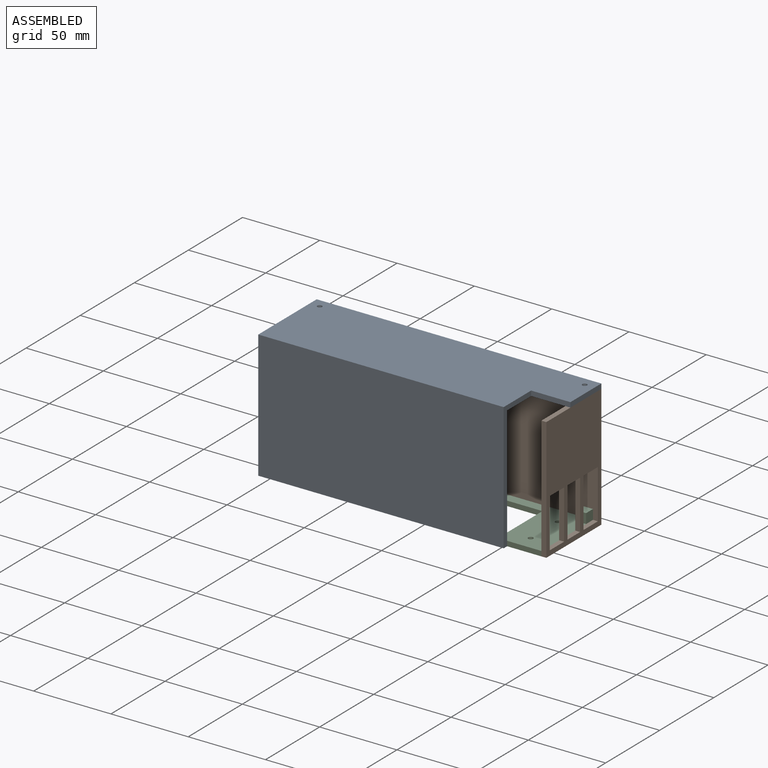
[diagram: assembled view]
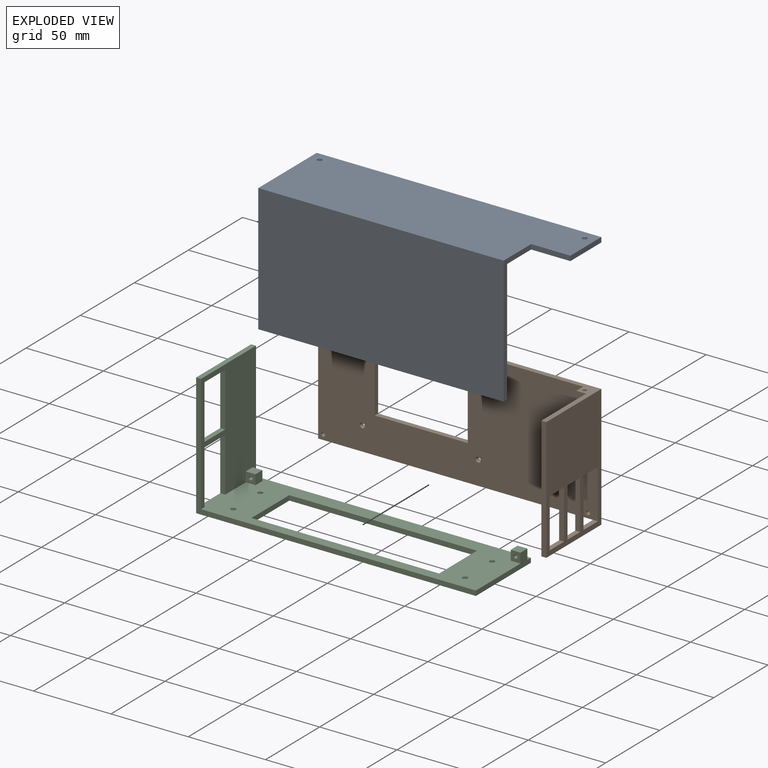
[diagram: exploded view]
GUIDED TOUR — MATED ASSEMBLY (Onshape document 92f3ffa5b7672909df5fd7ff, AutoMate assembly 92f3ffa5b7672909df5fd7ff_51680910f217cc7ab7fc2aa5_1418cc794fa4c30d9db74c9b_default)

This assembly has 3 components, labeled P0..P2 below (a component is one placed occurrence of a part; the same part can appear more than once), held together by 5 mates. A mate is a constraint between two components; its type names the relative motion it leaves free:
  CYLINDRICAL — leaves both rotation about and translation along the listed axis free,
  FASTENED — locks the two components together rigidly (no relative motion),
  PLANAR — leaves sliding in the plane through the listed point (normal = the listed direction) and rotation about that normal free.
Axis/direction vectors are unit vectors and 'through' points are millimeter coordinates, both in the assembly's world frame.

MATES
  1. PLANAR "Planar 1": P2 <-> P1, direction (0.000, 1.000, 0.000) through (-90.93, 37.94, 23.23) mm
  2. CYLINDRICAL "Cylindrical 3": P1 <-> P0, axis (0.000, 0.000, 1.000) through (-147.16, 31.59, 88.68) mm
  3. FASTENED "Fastened 1": P1 <-> P0, direction (0.000, 0.000, 1.000) through (24.29, 31.59, 88.68) mm
  4. CYLINDRICAL "Cylindrical 2": P2 <-> P1, axis (0.000, -1.000, 0.000) through (24.29, 28.41, 15.65) mm
  5. CYLINDRICAL "Cylindrical 1": P2 <-> P1, axis (0.000, -1.000, 0.000) through (-147.16, 28.41, 15.65) mm

ASSEMBLY ORDER
  1. P0 — the base component [order verified]
  2. P2 [order verified]
  3. P1 [order verified]
Order-tag legend:
  [order verified] — this step's position reverses a verified removal order: the component was checked to insert without passing through the ones already placed.

Of the 3 components, 3 carry the full construction recipe — the FeatureScript program that regenerates the part's solid from scratch; the rest are supplied as boundary geometry only.
Each toured component is shown spotlighted twice — in the assembled view, then in the exploded view, where a leader line traces a displaced component back to its assembled socket (saturated green if recipe-attached, orange if geometry-only; every other component desaturated gray) — followed by its recipe or geometry summary and the mates that hold it.
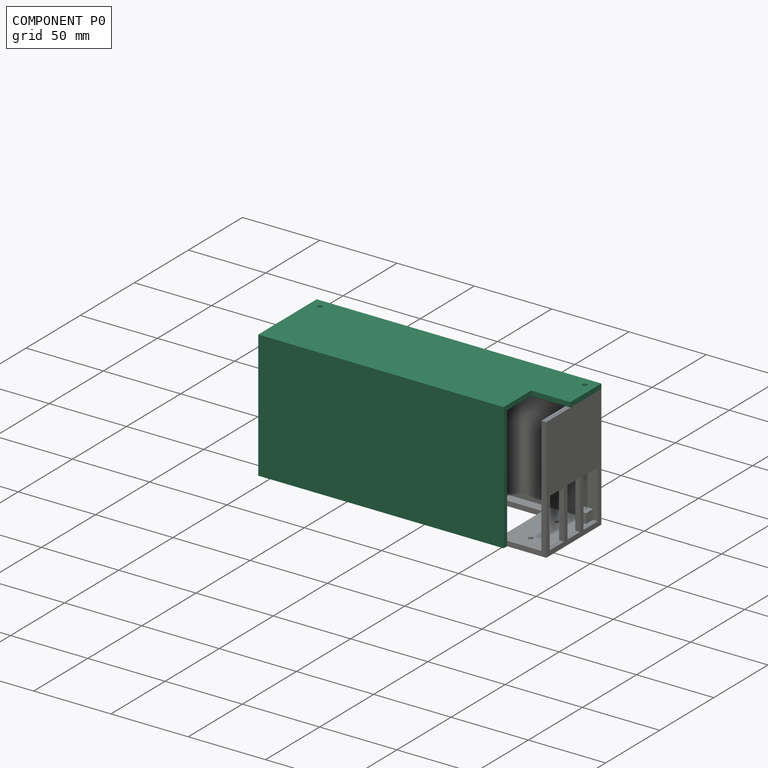
[diagram: component P0 — assembled]
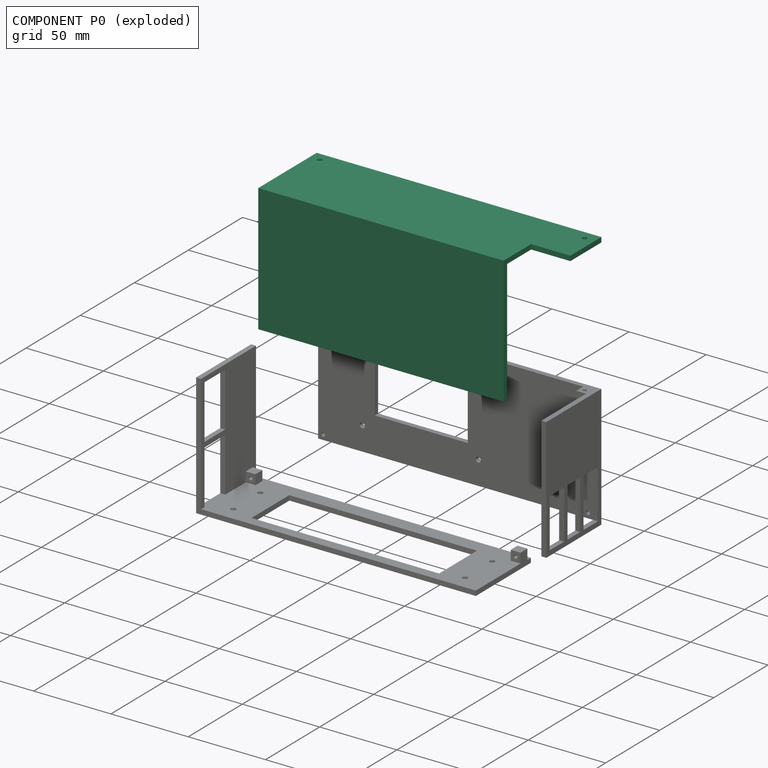
[diagram: component P0 — exploded]
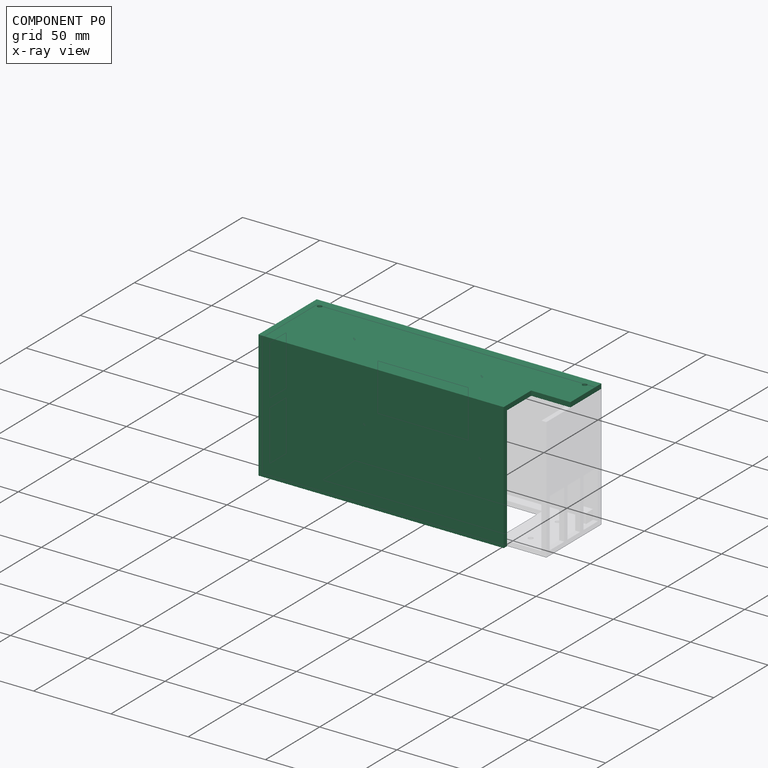
[diagram: component P0 — x-ray view]
COMPONENT P0 — recipe-attached (CADFS 00131218, mesh-verified: the recipe's output STEP matches this component's geometry to below the mesh-comparison resolution (tessellation chordal tolerance ~0.313 mm)).
Held by: CYLINDRICAL mate "Cylindrical 3" to P1; FASTENED mate "Fastened 1" to P1.
Construction recipe (FeatureScript — the CAD program that rebuilds this solid; sketch coordinates are in the units given by the * unit suffixes, e.g. mm):

FeatureScript 1511;
import(path : "onshape/std/geometry.fs", version : "1511.0");
import(path : "onshape/std/common.fs", version : "1511.0");
const mm = millimeter;
const VERTEX = EntityType.VERTEX;
const EDGE = EntityType.EDGE;
const FACE = EntityType.FACE;
const BODY = EntityType.BODY;
function v(x, y){return vector(x, y);}
function OD(order){return orderDisambiguation(order);}
function OSD(set){return originalSetDisambiguation(set);}
function TD(topology){return topologyDisambiguation(topology);}
function TDD(query){return trueDependencyDisambiguation(query);}
function sQuery(a, b, c) {return sketchEntityQuery(a, b, c);}

annotation { "Feature Type Name" : "Feature", "Feature Type Description" : "" }
export const myFeature = defineFeature(function(context is Context, id is Id, definition is map)
    precondition{}
    {
        {
            var Q0;
            Q0=qCreatedBy(makeId("Top.planeOp"),FACE);
            var sketch = newSketch(context, id + "F0", { "sketchPlane" : qUnion([Q0])});
            skLineSegment(sketch, "E0.bottom", {"start": v(0, 0) * mm, "end": v(-184.15, 0) * mm});
            skLineSegment(sketch, "E0.top", {"start": v(0, 53.97) * mm, "end": v(-184.15, 53.97) * mm});
            skLineSegment(sketch, "E0.left", {"start": v(0, 0) * mm, "end": v(0, 53.97) * mm});
            skLineSegment(sketch, "E0.right", {"start": v(-184.15, 0) * mm, "end": v(-184.15, 53.97) * mm});
            skSolve(sketch);
        }
        {
            var Q0;
            Q0=makeQuery(id+"F0.imprint","IMPRINT",FACE,{"disambiguationData":[TD([[makeQuery(id+"F0.imprint","IMPRINT",EDGE,{"derivedFrom":sQuery(id+"F0.wireOp",EDGE,"E0.bottom")}),-1.0]])]});
            extrude(context, id + "F1", {"entities" : qUnion([Q0]), "depth" : 3.17 * mm});
        }
        {
            var Q0;
            Q0=makeQuery(id+"F1.opExtrude","CAP_FACE",FACE,{"disambiguationData":[OSD([sQuery(id+"F0.wireOp",EDGE,"E0.bottom"),sQuery(id+"F0.wireOp",EDGE,"E0.top"),sQuery(id+"F0.wireOp",EDGE,"E0.left"),sQuery(id+"F0.wireOp",EDGE,"E0.right")])],"isStart":false});
            var sketch = newSketch(context, id + "F2", { "sketchPlane" : qUnion([Q0])});
            skPoint(sketch, "E1", {"position": v(-177.8, 47.62) * mm});
            skPoint(sketch, "E2", {"position": v(-6.35, 47.62) * mm});
            skSolve(sketch);
        }
        {
            var Q0;
            Q0=sQuery(id+"F2.wireOp",VERTEX,"E1");
            var Q1;
            Q1=sQuery(id+"F2.wireOp",VERTEX,"E2");
            var Q2;
            Q2=makeQuery(id+"F1.opExtrude","SWEPT_BODY",BODY,{"disambiguationData":[OSD([sQuery(id+"F0.wireOp",EDGE,"E0.bottom"),sQuery(id+"F0.wireOp",EDGE,"E0.top"),sQuery(id+"F0.wireOp",EDGE,"E0.left"),sQuery(id+"F0.wireOp",EDGE,"E0.right")])]});
            hole(context, id + "F3", {"style" : HoleStyle.SIMPLE, "endStyle" : HoleEndStyle.THROUGH, "holeDiameter" : 3 * mm, "locations" : qUnion([Q0, Q1]), "scope" : qUnion([Q2]), "isTappedThrough" : true});
        }
        {
            var Q0;
            Q0=makeQuery(id+"F1.opExtrude","CAP_FACE",FACE,{"disambiguationData":[OSD([sQuery(id+"F0.wireOp",EDGE,"E0.bottom"),sQuery(id+"F0.wireOp",EDGE,"E0.top"),sQuery(id+"F0.wireOp",EDGE,"E0.left"),sQuery(id+"F0.wireOp",EDGE,"E0.right")])],"isStart":false});
            var sketch = newSketch(context, id + "F4", { "sketchPlane" : qUnion([Q0])});
            skLineSegment(sketch, "E3.bottom", {"start": v(0, 0) * mm, "end": v(-25.4, 0) * mm});
            skLineSegment(sketch, "E3.top", {"start": v(0, 25.4) * mm, "end": v(-25.4, 25.4) * mm});
            skLineSegment(sketch, "E3.left", {"start": v(0, 0) * mm, "end": v(0, 25.4) * mm});
            skLineSegment(sketch, "E3.right", {"start": v(-25.4, 0) * mm, "end": v(-25.4, 25.4) * mm});
            skSolve(sketch);
        }
        {
            var Q0;
            Q0=makeQuery(id+"F4.imprint","IMPRINT",FACE,{"disambiguationData":[TD([[makeQuery(id+"F4.imprint","IMPRINT",EDGE,{"derivedFrom":sQuery(id+"F4.wireOp",EDGE,"E3.bottom")}),-1.0]])]});
            extrude(context, id + "F5", {"entities" : qUnion([Q0]), "operationType" : NewBodyOperationType.REMOVE, "oppositeDirection" : true, "depth" : 25.4 * mm});
        }
        {
            var Q0;
            Q0=makeQuery(id+"F1.opExtrude","CAP_FACE",FACE,{"disambiguationData":[OSD([sQuery(id+"F0.wireOp",EDGE,"E0.bottom"),sQuery(id+"F0.wireOp",EDGE,"E0.top"),sQuery(id+"F0.wireOp",EDGE,"E0.left"),sQuery(id+"F0.wireOp",EDGE,"E0.right")])],"isStart":true});
            var sketch = newSketch(context, id + "F6", { "sketchPlane" : qUnion([Q0])});
            skLineSegment(sketch, "E4.bottom", {"start": v(-25.4, 0) * mm, "end": v(-184.15, 0) * mm});
            skLineSegment(sketch, "E4.top", {"start": v(-25.4, -3.18) * mm, "end": v(-184.15, -3.18) * mm});
            skLineSegment(sketch, "E4.left", {"start": v(-25.4, 0) * mm, "end": v(-25.4, -3.18) * mm});
            skLineSegment(sketch, "E4.right", {"start": v(-184.15, 0) * mm, "end": v(-184.15, -3.18) * mm});
            skSolve(sketch);
        }
        {
            var Q0;
            Q0 = qSketchRegion(id + "F6", true);
            extrude(context, id + "F7", {"entities" : qUnion([Q0]), "operationType" : NewBodyOperationType.ADD, "depth" : 79.38 * mm});
        }
    });
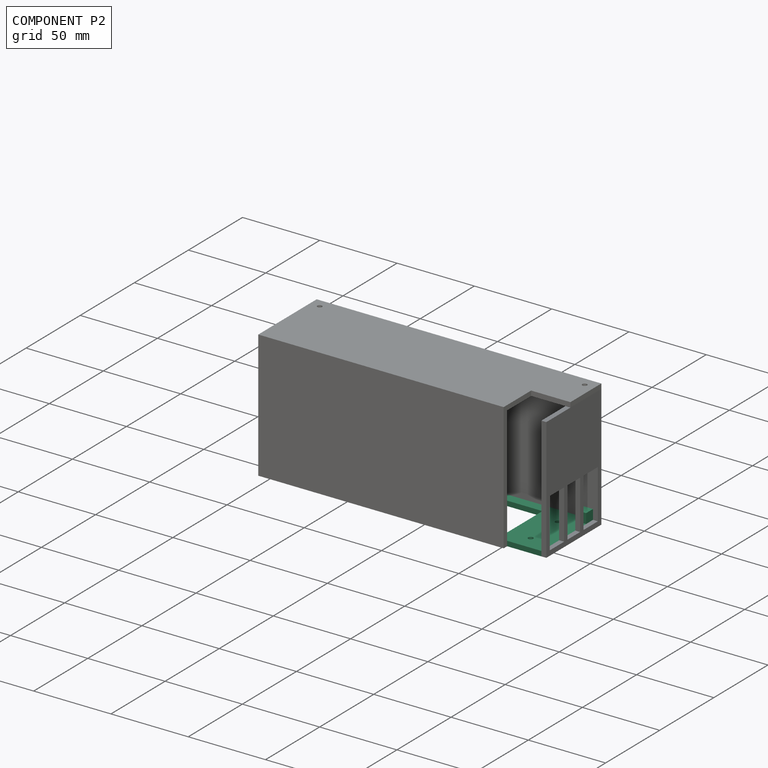
[diagram: component P2 — assembled]
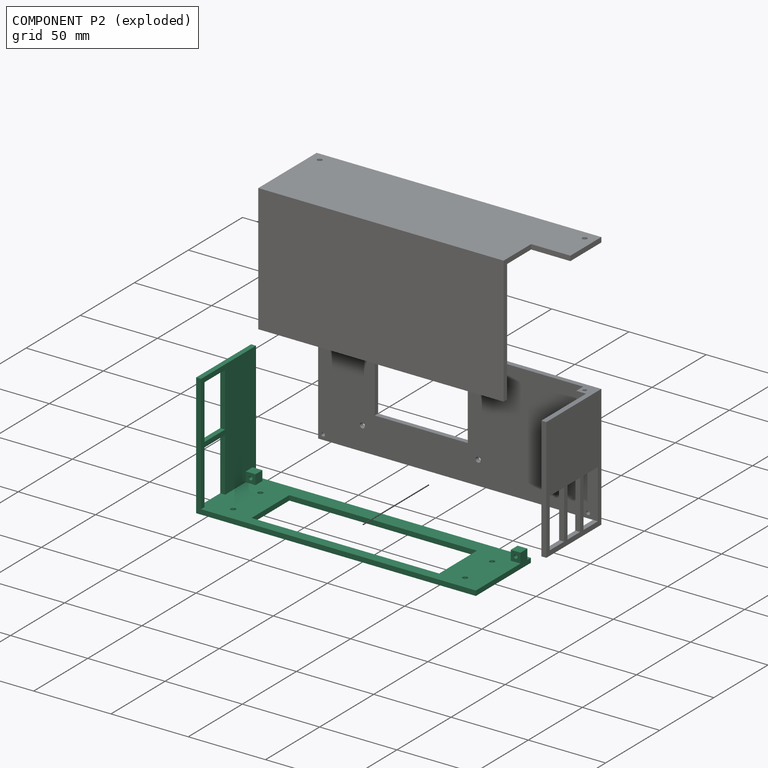
[diagram: component P2 — exploded]
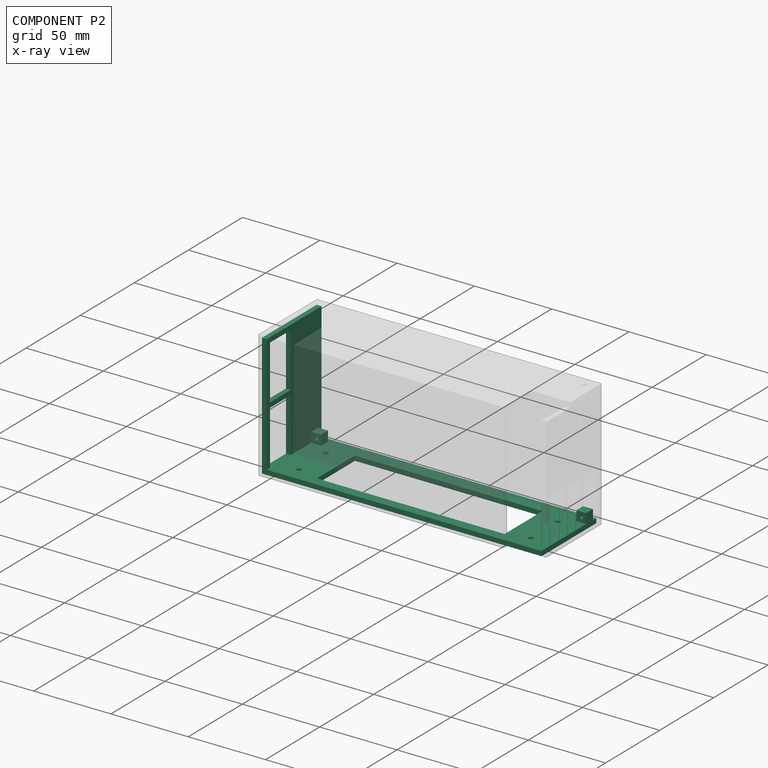
[diagram: component P2 — x-ray view]
COMPONENT P2 — recipe-attached (CADFS 00131217, mesh-verified: the recipe's output STEP matches this component's geometry to below the mesh-comparison resolution (tessellation chordal tolerance ~0.306 mm)).
Held by: PLANAR mate "Planar 1" to P1; CYLINDRICAL mate "Cylindrical 2" to P1; CYLINDRICAL mate "Cylindrical 1" to P1.
Construction recipe (FeatureScript — the CAD program that rebuilds this solid; sketch coordinates are in the units given by the * unit suffixes, e.g. mm):

FeatureScript 1511;
import(path : "onshape/std/geometry.fs", version : "1511.0");
import(path : "onshape/std/common.fs", version : "1511.0");
const mm = millimeter;
const VERTEX = EntityType.VERTEX;
const EDGE = EntityType.EDGE;
const FACE = EntityType.FACE;
const BODY = EntityType.BODY;
function v(x, y){return vector(x, y);}
function OD(order){return orderDisambiguation(order);}
function OSD(set){return originalSetDisambiguation(set);}
function TD(topology){return topologyDisambiguation(topology);}
function TDD(query){return trueDependencyDisambiguation(query);}
function sQuery(a, b, c) {return sketchEntityQuery(a, b, c);}

annotation { "Feature Type Name" : "Feature", "Feature Type Description" : "" }
export const myFeature = defineFeature(function(context is Context, id is Id, definition is map)
    precondition{}
    {
        {
            var Q0;
            Q0=qCreatedBy(makeId("Top.planeOp"),FACE);
            var sketch = newSketch(context, id + "F0", { "sketchPlane" : qUnion([Q0])});
            skLineSegment(sketch, "E0.bottom", {"start": v(-95.97, 25.4) * mm, "end": v(88.18, 25.4) * mm});
            skLineSegment(sketch, "E0.top", {"start": v(-95.97, -25.4) * mm, "end": v(88.18, -25.4) * mm});
            skLineSegment(sketch, "E0.left", {"start": v(-95.97, 25.4) * mm, "end": v(-95.97, -25.4) * mm});
            skLineSegment(sketch, "E0.right", {"start": v(88.18, 25.4) * mm, "end": v(88.18, -25.4) * mm});
            skPoint(sketch, "E0.middle", {"position": v(-3.9, 0) * mm});
            skSolve(sketch);
        }
        {
            var Q0;
            Q0=makeQuery(id+"F0.imprint","IMPRINT",FACE,{"disambiguationData":[TD([[makeQuery(id+"F0.imprint","IMPRINT",EDGE,{"derivedFrom":sQuery(id+"F0.wireOp",EDGE,"E0.bottom")}),-1.0]])]});
            extrude(context, id + "F1", {"entities" : qUnion([Q0]), "depth" : 3.17 * mm});
        }
        {
            var Q0;
            Q0=makeQuery(id+"F1.opExtrude","CAP_FACE",FACE,{"disambiguationData":[OSD([sQuery(id+"F0.wireOp",EDGE,"E0.bottom"),sQuery(id+"F0.wireOp",EDGE,"E0.top"),sQuery(id+"F0.wireOp",EDGE,"E0.left"),sQuery(id+"F0.wireOp",EDGE,"E0.right")])],"isStart":false});
            var sketch = newSketch(context, id + "F2", { "sketchPlane" : qUnion([Q0])});
            skPoint(sketch, "E1", {"position": v(-78.9, 9.53) * mm});
            skPoint(sketch, "E2", {"position": v(71.1, 9.53) * mm});
            skPoint(sketch, "E3", {"position": v(71.1, -15.47) * mm});
            skPoint(sketch, "E4", {"position": v(-78.9, -15.47) * mm});
            skLineSegment(sketch, "E5", {"start": v(-78.9, 9.53) * mm, "end": v(-95.97, 9.53) * mm, "construction": true});
            skLineSegment(sketch, "E6", {"start": v(71.1, 9.53) * mm, "end": v(88.18, 9.53) * mm, "construction": true});
            skPoint(sketch, "E6.endSnap0", {"position": v(88.18, 0) * mm});
            skSolve(sketch);
        }
        {
            var Q0;
            Q0=sQuery(id+"F2.wireOp",VERTEX,"E1");
            var Q1;
            Q1=sQuery(id+"F2.wireOp",VERTEX,"E4");
            var Q2;
            Q2=sQuery(id+"F2.wireOp",VERTEX,"E3");
            var Q3;
            Q3=sQuery(id+"F2.wireOp",VERTEX,"E2");
            var Q4;
            Q4=makeQuery(id+"F1.opExtrude","SWEPT_BODY",BODY,{"disambiguationData":[OSD([sQuery(id+"F0.wireOp",EDGE,"E0.bottom"),sQuery(id+"F0.wireOp",EDGE,"E0.top"),sQuery(id+"F0.wireOp",EDGE,"E0.left"),sQuery(id+"F0.wireOp",EDGE,"E0.right")])]});
            hole(context, id + "F3", {"style" : HoleStyle.SIMPLE, "endStyle" : HoleEndStyle.THROUGH, "standardTappedOrClearance" : lookupTablePath({ "standard" : "ISO", "engagement" : "75%", "pitch" : "0.75 mm", "size" : "M4", "type" : "Tapped" }), "standardBlindInLast" : lookupTablePath({ "standard" : "ISO", "engagement" : "75%", "pitch" : "0.75 mm", "size" : "M4", "type" : "Tapped" }), "holeDiameter" : 3.2 * mm, "locations" : qUnion([Q0, Q1, Q2, Q3]), "scope" : qUnion([Q4]), "isTappedThrough" : true, "showTappedDepth" : true});
        }
        {
            var Q0;
            Q0=makeQuery(id+"F1.opExtrude","CAP_FACE",FACE,{"disambiguationData":[OSD([sQuery(id+"F0.wireOp",EDGE,"E0.bottom"),sQuery(id+"F0.wireOp",EDGE,"E0.top"),sQuery(id+"F0.wireOp",EDGE,"E0.left"),sQuery(id+"F0.wireOp",EDGE,"E0.right")])],"isStart":false});
            var sketch = newSketch(context, id + "F4", { "sketchPlane" : qUnion([Q0])});
            skLineSegment(sketch, "E7.bottom", {"start": v(-95.97, 25.4) * mm, "end": v(88.18, 25.4) * mm});
            skLineSegment(sketch, "E7.top", {"start": v(-95.97, 22.23) * mm, "end": v(88.18, 22.23) * mm});
            skLineSegment(sketch, "E7.left", {"start": v(-95.97, 25.4) * mm, "end": v(-95.97, 22.23) * mm});
            skLineSegment(sketch, "E7.right", {"start": v(88.18, 25.4) * mm, "end": v(88.18, 22.23) * mm});
            skSolve(sketch);
        }
        {
            var Q0;
            Q0=makeQuery(id+"F4.imprint","IMPRINT",FACE,{"disambiguationData":[TD([[makeQuery(id+"F4.imprint","IMPRINT",EDGE,{"derivedFrom":sQuery(id+"F4.wireOp",EDGE,"E7.bottom")}),-1.0]])]});
            extrude(context, id + "F5", {"entities" : qUnion([Q0]), "operationType" : NewBodyOperationType.ADD, "depth" : 76.2 * mm});
        }
        {
            var Q0;
            Q0=makeQuery(id+"F5.opExtrude","SWEPT_FACE",FACE,{"disambiguationData":[OSD([sQuery(id+"F4.wireOp",EDGE,"E7.top")])]});
            var sketch = newSketch(context, id + "F6", { "sketchPlane" : qUnion([Q0])});
            skPoint(sketch, "E8", {"position": v(-70.57, 66.67) * mm});
            skPoint(sketch, "E9", {"position": v(11.98, 66.67) * mm});
            skPoint(sketch, "E10", {"position": v(-64.22, 18.41) * mm});
            skPoint(sketch, "E11", {"position": v(10.7, 18.42) * mm});
            skSolve(sketch);
        }
        {
            var Q0;
            Q0=sQuery(id+"F6.wireOp",VERTEX,"E8");
            var Q1;
            Q1=sQuery(id+"F6.wireOp",VERTEX,"E9");
            var Q2;
            Q2=sQuery(id+"F6.wireOp",VERTEX,"E11");
            var Q3;
            Q3=sQuery(id+"F6.wireOp",VERTEX,"E10");
            var Q4;
            Q4=makeQuery(id+"F1.opExtrude","SWEPT_BODY",BODY,{"disambiguationData":[OSD([sQuery(id+"F0.wireOp",EDGE,"E0.bottom"),sQuery(id+"F0.wireOp",EDGE,"E0.top"),sQuery(id+"F0.wireOp",EDGE,"E0.left"),sQuery(id+"F0.wireOp",EDGE,"E0.right")])]});
            hole(context, id + "F7", {"style" : HoleStyle.SIMPLE, "endStyle" : HoleEndStyle.THROUGH, "standardTappedOrClearance" : lookupTablePath({ "standard" : "ISO", "fit" : "Normal", "size" : "M3", "type" : "Clearance" }), "standardBlindInLast" : lookupTablePath({ "fit" : "Standard", "standard" : "ISO", "size" : "M3", "type" : "Clearance" }), "holeDiameter" : 3.3 * mm, "locations" : qUnion([Q0, Q1, Q2, Q3]), "scope" : qUnion([Q4]), "isTappedThrough" : true});
        }
        {
            var Q0;
            Q0=makeQuery(id+"F1.opExtrude","CAP_FACE",FACE,{"disambiguationData":[OSD([sQuery(id+"F0.wireOp",EDGE,"E0.bottom"),sQuery(id+"F0.wireOp",EDGE,"E0.top"),sQuery(id+"F0.wireOp",EDGE,"E0.left"),sQuery(id+"F0.wireOp",EDGE,"E0.right")])],"isStart":false});
            var sketch = newSketch(context, id + "F8", { "sketchPlane" : qUnion([Q0])});
            skLineSegment(sketch, "E12.bottom", {"start": v(-95.97, 22.23) * mm, "end": v(-92.8, 22.23) * mm});
            skLineSegment(sketch, "E12.top", {"start": v(-95.97, -25.4) * mm, "end": v(-92.8, -25.4) * mm});
            skLineSegment(sketch, "E12.left", {"start": v(-95.97, 22.23) * mm, "end": v(-95.97, -25.4) * mm});
            skLineSegment(sketch, "E12.right", {"start": v(-92.8, 22.23) * mm, "end": v(-92.8, -25.4) * mm});
            skSolve(sketch);
        }
        {
            var Q0;
            Q0=makeQuery(id+"F8.imprint","IMPRINT",FACE,{"disambiguationData":[TD([[makeQuery(id+"F8.imprint","IMPRINT",EDGE,{"derivedFrom":sQuery(id+"F8.wireOp",EDGE,"E12.bottom")}),-1.0]])]});
            extrude(context, id + "F9", {"entities" : qUnion([Q0]), "operationType" : NewBodyOperationType.ADD, "depth" : 76.2 * mm});
        }
        {
            var Q0;
            Q0=makeQuery(id+"F9.boolean.opBoolean","MERGE",FACE,{"derivedFrom":[makeQuery(id+"F5.boolean.opBoolean","MERGE",FACE,{"derivedFrom":[makeQuery(id+"F1.opExtrude","SWEPT_FACE",FACE,{"disambiguationData":[OSD([sQuery(id+"F0.wireOp",EDGE,"E0.left")])]}),makeQuery(id+"F5.opExtrude","SWEPT_FACE",FACE,{"disambiguationData":[OSD([sQuery(id+"F4.wireOp",EDGE,"E7.left")])]})]}),makeQuery(id+"F9.opExtrude","SWEPT_FACE",FACE,{"disambiguationData":[OSD([sQuery(id+"F8.wireOp",EDGE,"E12.left")])]})]});
            var sketch = newSketch(context, id + "F10", { "sketchPlane" : qUnion([Q0])});
            skLineSegment(sketch, "E13.bottom", {"start": v(3.18, 76.2) * mm, "end": v(22.23, 76.2) * mm});
            skLineSegment(sketch, "E13.top", {"start": v(3.18, 3.18) * mm, "end": v(22.23, 3.18) * mm});
            skLineSegment(sketch, "E13.left", {"start": v(3.18, 76.2) * mm, "end": v(3.18, 3.17) * mm});
            skLineSegment(sketch, "E13.right", {"start": v(22.23, 76.2) * mm, "end": v(22.23, 3.17) * mm});
            skLineSegment(sketch, "E14", {"start": v(3.18, 39.69) * mm, "end": v(22.23, 39.69) * mm});
            skLineSegment(sketch, "E15", {"start": v(3.18, 41.27) * mm, "end": v(22.23, 41.27) * mm});
            skLineSegment(sketch, "E16", {"start": v(3.18, 38.1) * mm, "end": v(22.23, 38.1) * mm});
            skSolve(sketch);
        }
        {
            var Q0;
            {var subQ0=sQuery(id+"F10.wireOp",EDGE,"E13.bottom");Q0=makeQuery(id+"F10.imprint","IMPRINT",FACE,{"disambiguationData":[TD([[makeQuery(id+"F10.imprint","IMPRINT",EDGE,{"derivedFrom":subQ0}),-1.0]])]});}
            var Q1;
            {var subQ0=sQuery(id+"F10.wireOp",EDGE,"E13.top");Q1=makeQuery(id+"F10.imprint","IMPRINT",FACE,{"disambiguationData":[TD([[makeQuery(id+"F10.imprint","IMPRINT",EDGE,{"derivedFrom":subQ0}),1.0]])]});}
            extrude(context, id + "F11", {"entities" : qUnion([Q0, Q1]), "operationType" : NewBodyOperationType.REMOVE, "endBound" : BoundingType.UP_TO_NEXT, "oppositeDirection" : true, "depth" : 25.4 * mm});
        }
        {
            var Q0;
            Q0=makeQuery(id+"F11.boolean.opBoolean","MERGE",FACE,{"derivedFrom":[makeQuery(id+"F1.opExtrude","CAP_FACE",FACE,{"disambiguationData":[OSD([sQuery(id+"F0.wireOp",EDGE,"E0.bottom"),sQuery(id+"F0.wireOp",EDGE,"E0.top"),sQuery(id+"F0.wireOp",EDGE,"E0.left"),sQuery(id+"F0.wireOp",EDGE,"E0.right")])],"isStart":false}),makeQuery(id+"F11.opExtrude","SWEPT_FACE",FACE,{"disambiguationData":[OSD([sQuery(id+"F10.wireOp",EDGE,"E13.top")])]})]});
            var sketch = newSketch(context, id + "F12", { "sketchPlane" : qUnion([Q0])});
            skLineSegment(sketch, "E17.bottom", {"start": v(88.18, 22.23) * mm, "end": v(85, 22.23) * mm});
            skLineSegment(sketch, "E17.top", {"start": v(88.18, -25.4) * mm, "end": v(85, -25.4) * mm});
            skLineSegment(sketch, "E17.left", {"start": v(88.18, 22.23) * mm, "end": v(88.18, -25.4) * mm});
            skLineSegment(sketch, "E17.right", {"start": v(85, 22.23) * mm, "end": v(85, -25.4) * mm});
            skSolve(sketch);
        }
        {
            var Q0;
            Q0=makeQuery(id+"F12.imprint","IMPRINT",FACE,{"disambiguationData":[TD([[makeQuery(id+"F12.imprint","IMPRINT",EDGE,{"derivedFrom":sQuery(id+"F12.wireOp",EDGE,"E17.bottom")}),-1.0]])]});
            extrude(context, id + "F13", {"entities" : qUnion([Q0]), "operationType" : NewBodyOperationType.ADD, "depth" : 76.2 * mm});
        }
        {
            var Q0;
            Q0=makeQuery(id+"F13.boolean.opBoolean","MERGE",FACE,{"derivedFrom":[makeQuery(id+"F5.boolean.opBoolean","MERGE",FACE,{"derivedFrom":[makeQuery(id+"F1.opExtrude","SWEPT_FACE",FACE,{"disambiguationData":[OSD([sQuery(id+"F0.wireOp",EDGE,"E0.right")])]}),makeQuery(id+"F5.opExtrude","SWEPT_FACE",FACE,{"disambiguationData":[OSD([sQuery(id+"F4.wireOp",EDGE,"E7.right")])]})]}),makeQuery(id+"F13.opExtrude","SWEPT_FACE",FACE,{"disambiguationData":[OSD([sQuery(id+"F12.wireOp",EDGE,"E17.left")])]})]});
            var sketch = newSketch(context, id + "F14", { "sketchPlane" : qUnion([Q0])});
            skLineSegment(sketch, "E18.bottom", {"start": v(-22.22, 3.17) * mm, "end": v(22.23, 3.18) * mm});
            skLineSegment(sketch, "E18.top", {"start": v(-22.22, 34.92) * mm, "end": v(22.23, 34.93) * mm});
            skLineSegment(sketch, "E18.left", {"start": v(-22.22, 3.17) * mm, "end": v(-22.22, 34.92) * mm});
            skLineSegment(sketch, "E18.right", {"start": v(22.23, 3.17) * mm, "end": v(22.23, 34.92) * mm});
            skLineSegment(sketch, "E19", {"start": v(-7.4, 34.92) * mm, "end": v(-7.4, 3.18) * mm, "construction": true});
            skLineSegment(sketch, "E20", {"start": v(7.4, 34.92) * mm, "end": v(7.4, 3.18) * mm, "construction": true});
            skLineSegment(sketch, "E21", {"start": v(-22.22, 19.05) * mm, "end": v(-7.4, 19.05) * mm, "construction": true});
            skLineSegment(sketch, "E22", {"start": v(-7.4, 19.05) * mm, "end": v(7.4, 19.05) * mm, "construction": true});
            skLineSegment(sketch, "E23", {"start": v(7.4, 19.05) * mm, "end": v(22.23, 19.05) * mm, "construction": true});
            skLineSegment(sketch, "E24.bottom", {"start": v(-9, 34.92) * mm, "end": v(-5.82, 34.92) * mm});
            skLineSegment(sketch, "E24.top", {"start": v(-9, 3.17) * mm, "end": v(-5.82, 3.17) * mm});
            skLineSegment(sketch, "E24.left", {"start": v(-9, 34.92) * mm, "end": v(-9, 3.17) * mm});
            skLineSegment(sketch, "E24.right", {"start": v(-5.82, 34.92) * mm, "end": v(-5.82, 3.17) * mm});
            skPoint(sketch, "E24.middle", {"position": v(-7.4, 19.05) * mm});
            skLineSegment(sketch, "E25.bottom", {"start": v(5.82, 34.92) * mm, "end": v(9, 34.92) * mm});
            skLineSegment(sketch, "E25.top", {"start": v(5.82, 3.17) * mm, "end": v(9, 3.17) * mm});
            skLineSegment(sketch, "E25.left", {"start": v(5.82, 34.92) * mm, "end": v(5.82, 3.17) * mm});
            skLineSegment(sketch, "E25.right", {"start": v(9, 34.92) * mm, "end": v(9, 3.17) * mm});
            skPoint(sketch, "E25.middle", {"position": v(7.4, 19.05) * mm});
            skSolve(sketch);
        }
        {
            var Q0;
            {var subQ0=sQuery(id+"F14.wireOp",EDGE,"E18.left");Q0=makeQuery(id+"F14.imprint","IMPRINT",FACE,{"disambiguationData":[TD([[makeQuery(id+"F14.imprint","IMPRINT",EDGE,{"derivedFrom":subQ0}),-1.0]])]});}
            var Q1;
            {var subQ0=sQuery(id+"F14.wireOp",EDGE,"E24.right");Q1=makeQuery(id+"F14.imprint","IMPRINT",FACE,{"disambiguationData":[TD([[makeQuery(id+"F14.imprint","IMPRINT",EDGE,{"derivedFrom":subQ0}),1.0]])]});}
            var Q2;
            {var subQ0=sQuery(id+"F14.wireOp",EDGE,"E18.right");Q2=makeQuery(id+"F14.imprint","IMPRINT",FACE,{"disambiguationData":[TD([[makeQuery(id+"F14.imprint","IMPRINT",EDGE,{"derivedFrom":subQ0}),1.0]])]});}
            extrude(context, id + "F15", {"entities" : qUnion([Q0, Q1, Q2]), "operationType" : NewBodyOperationType.REMOVE, "endBound" : BoundingType.UP_TO_NEXT, "oppositeDirection" : true, "depth" : 25.4 * mm});
        }
        {
            var Q0;
            Q0=makeQuery(id+"F15.boolean.opBoolean","MERGE",FACE,{"derivedFrom":[makeQuery(id+"F5.opExtrude","SWEPT_FACE",FACE,{"disambiguationData":[OSD([sQuery(id+"F4.wireOp",EDGE,"E7.top")])]}),makeQuery(id+"F15.opExtrude","SWEPT_FACE",FACE,{"disambiguationData":[OSD([sQuery(id+"F14.wireOp",EDGE,"E18.right")])]})]});
            var sketch = newSketch(context, id + "F16", { "sketchPlane" : qUnion([Q0])});
            skLineSegment(sketch, "E26.bottom", {"start": v(-92.8, 79.38) * mm, "end": v(-86.45, 79.38) * mm});
            skLineSegment(sketch, "E26.top", {"start": v(-92.8, 73.03) * mm, "end": v(-86.45, 73.03) * mm});
            skLineSegment(sketch, "E26.left", {"start": v(-92.8, 79.38) * mm, "end": v(-92.8, 73.03) * mm});
            skLineSegment(sketch, "E26.right", {"start": v(-86.45, 79.38) * mm, "end": v(-86.45, 73.03) * mm});
            skLineSegment(sketch, "E27.bottom", {"start": v(85, 79.38) * mm, "end": v(78.65, 79.38) * mm});
            skLineSegment(sketch, "E27.top", {"start": v(85, 73.03) * mm, "end": v(78.65, 73.03) * mm});
            skLineSegment(sketch, "E27.left", {"start": v(85, 79.38) * mm, "end": v(85, 73.03) * mm});
            skLineSegment(sketch, "E27.right", {"start": v(78.65, 79.38) * mm, "end": v(78.65, 73.03) * mm});
            skSolve(sketch);
        }
        {
            var Q0;
            Q0=makeQuery(id+"F16.imprint","IMPRINT",FACE,{"disambiguationData":[TD([[makeQuery(id+"F16.imprint","IMPRINT",EDGE,{"derivedFrom":sQuery(id+"F16.wireOp",EDGE,"E26.bottom")}),-1.0]])]});
            var Q1;
            Q1=makeQuery(id+"F16.imprint","IMPRINT",FACE,{"disambiguationData":[TD([[makeQuery(id+"F16.imprint","IMPRINT",EDGE,{"derivedFrom":sQuery(id+"F16.wireOp",EDGE,"E26.bottom")}),-1.0]])]});
            var Q2;
            Q2=makeQuery(id+"F16.imprint","IMPRINT",FACE,{"disambiguationData":[TD([[makeQuery(id+"F16.imprint","IMPRINT",EDGE,{"derivedFrom":sQuery(id+"F16.wireOp",EDGE,"E27.bottom")}),-1.0]])]});
            extrude(context, id + "F17", {"entities" : qUnion([Q0, Q1, Q2]), "operationType" : NewBodyOperationType.ADD, "depth" : 6.35 * mm});
        }
        {
            var Q0;
            Q0=makeQuery(id+"F17.boolean.opBoolean","MERGE",FACE,{"derivedFrom":[makeQuery(id+"F13.boolean.opBoolean","MERGE",FACE,{"derivedFrom":[makeQuery(id+"F9.boolean.opBoolean","MERGE",FACE,{"derivedFrom":[makeQuery(id+"F5.opExtrude","CAP_FACE",FACE,{"disambiguationData":[OSD([sQuery(id+"F4.wireOp",EDGE,"E7.bottom"),sQuery(id+"F4.wireOp",EDGE,"E7.top"),sQuery(id+"F4.wireOp",EDGE,"E7.left"),sQuery(id+"F4.wireOp",EDGE,"E7.right")])],"isStart":false}),makeQuery(id+"F9.opExtrude","CAP_FACE",FACE,{"disambiguationData":[OSD([sQuery(id+"F8.wireOp",EDGE,"E12.bottom"),sQuery(id+"F8.wireOp",EDGE,"E12.top"),sQuery(id+"F8.wireOp",EDGE,"E12.left"),sQuery(id+"F8.wireOp",EDGE,"E12.right")])],"isStart":false})]}),makeQuery(id+"F13.opExtrude","CAP_FACE",FACE,{"disambiguationData":[OSD([sQuery(id+"F12.wireOp",EDGE,"E17.bottom"),sQuery(id+"F12.wireOp",EDGE,"E17.top"),sQuery(id+"F12.wireOp",EDGE,"E17.left"),sQuery(id+"F12.wireOp",EDGE,"E17.right")])],"isStart":false})]}),makeQuery(id+"F17.opExtrude","SWEPT_FACE",FACE,{"disambiguationData":[OSD([sQuery(id+"F16.wireOp",EDGE,"E26.bottom")])]}),makeQuery(id+"F17.opExtrude","SWEPT_FACE",FACE,{"disambiguationData":[OSD([sQuery(id+"F16.wireOp",EDGE,"E27.bottom")])]})]});
            var sketch = newSketch(context, id + "F18", { "sketchPlane" : qUnion([Q0])});
            skPoint(sketch, "E28", {"position": v(-89.62, 19.05) * mm});
            skPoint(sketch, "E29", {"position": v(81.83, 19.05) * mm});
            skSolve(sketch);
        }
        {
            var Q0;
            Q0=sQuery(id+"F18.wireOp",VERTEX,"E28");
            var Q1;
            Q1=sQuery(id+"F18.wireOp",VERTEX,"E29");
            var Q2;
            Q2=makeQuery(id+"F1.opExtrude","SWEPT_BODY",BODY,{"disambiguationData":[OSD([sQuery(id+"F0.wireOp",EDGE,"E0.bottom"),sQuery(id+"F0.wireOp",EDGE,"E0.top"),sQuery(id+"F0.wireOp",EDGE,"E0.left"),sQuery(id+"F0.wireOp",EDGE,"E0.right")])]});
            hole(context, id + "F19", {"style" : HoleStyle.SIMPLE, "endStyle" : HoleEndStyle.BLIND, "standardTappedOrClearance" : lookupTablePath({ "standard" : "ISO", "engagement" : "75%", "pitch" : "0.6 mm", "size" : "M3", "type" : "Tapped" }), "standardBlindInLast" : lookupTablePath({ "standard" : "ISO", "engagement" : "75%", "pitch" : "0.6 mm", "size" : "M3", "type" : "Tapped" }), "holeDiameter" : 2.4 * mm, "holeDepth" : 12.7 * mm, "locations" : qUnion([Q0, Q1]), "scope" : qUnion([Q2])});
        }
        {
            var Q0;
            {var subQ0=sQuery(id+"F14.wireOp",EDGE,"E18.bottom");var subQ2=sQuery(id+"F14.wireOp",EDGE,"E24.top");Q0=makeQuery(id+"F15.boolean.opBoolean","MERGE",FACE,{"derivedFrom":[makeQuery(id+"F11.boolean.opBoolean","MERGE",FACE,{"derivedFrom":[makeQuery(id+"F1.opExtrude","CAP_FACE",FACE,{"disambiguationData":[OSD([sQuery(id+"F0.wireOp",EDGE,"E0.bottom"),sQuery(id+"F0.wireOp",EDGE,"E0.top"),sQuery(id+"F0.wireOp",EDGE,"E0.left"),sQuery(id+"F0.wireOp",EDGE,"E0.right")])],"isStart":false}),makeQuery(id+"F11.opExtrude","SWEPT_FACE",FACE,{"disambiguationData":[OSD([sQuery(id+"F10.wireOp",EDGE,"E13.top")])]})]}),makeQuery(id+"F15.opExtrude","SWEPT_FACE",FACE,{"disambiguationData":[OSD([subQ0]),TDD([makeQuery(id+"F14.imprint","IMPRINT",EDGE,{"disambiguationData":[TD([[makeQuery(id+"F14.imprint","INTERSECT",VERTEX,{"derivedFrom":[subQ0,sQuery(id+"F14.wireOp",EDGE,"E18.left")]}),-1.0]])],"derivedFrom":subQ0})])]}),makeQuery(id+"F15.opExtrude","SWEPT_FACE",FACE,{"disambiguationData":[OSD([subQ0]),TDD([makeQuery(id+"F14.imprint","IMPRINT",EDGE,{"disambiguationData":[TD([[makeQuery(id+"F14.imprint","INTERSECT",VERTEX,{"derivedFrom":[subQ0,subQ2,sQuery(id+"F14.wireOp",EDGE,"E24.right")]}),-1.0]])],"derivedFrom":subQ0})])]}),makeQuery(id+"F15.opExtrude","SWEPT_FACE",FACE,{"disambiguationData":[OSD([subQ0]),TDD([makeQuery(id+"F14.imprint","IMPRINT",EDGE,{"disambiguationData":[TD([[makeQuery(id+"F14.imprint","INTERSECT",VERTEX,{"derivedFrom":[subQ0,sQuery(id+"F14.wireOp",EDGE,"E18.right")]}),1.0]])],"derivedFrom":subQ0})])]})]});}
            var sketch = newSketch(context, id + "F20", { "sketchPlane" : qUnion([Q0])});
            skLineSegment(sketch, "E30.bottom", {"start": v(-64.6, -19.05) * mm, "end": v(56.8, -19.05) * mm});
            skLineSegment(sketch, "E30.top", {"start": v(-64.6, 15.88) * mm, "end": v(56.8, 15.88) * mm});
            skLineSegment(sketch, "E30.left", {"start": v(-64.6, -19.05) * mm, "end": v(-64.6, 15.88) * mm});
            skLineSegment(sketch, "E30.right", {"start": v(56.8, -19.05) * mm, "end": v(56.8, 15.88) * mm});
            skSolve(sketch);
        }
        {
            var Q0;
            Q0=makeQuery(id+"F20.imprint","IMPRINT",FACE,{"disambiguationData":[TD([[makeQuery(id+"F20.imprint","IMPRINT",EDGE,{"derivedFrom":sQuery(id+"F20.wireOp",EDGE,"E30.bottom")}),1.0]])]});
            extrude(context, id + "F21", {"entities" : qUnion([Q0]), "operationType" : NewBodyOperationType.REMOVE, "oppositeDirection" : true, "depth" : 25.4 * mm});
        }
        {
            var Q0;
            Q0=makeQuery(id+"F15.boolean.opBoolean","MERGE",FACE,{"derivedFrom":[makeQuery(id+"F5.opExtrude","SWEPT_FACE",FACE,{"disambiguationData":[OSD([sQuery(id+"F4.wireOp",EDGE,"E7.top")])]}),makeQuery(id+"F15.opExtrude","SWEPT_FACE",FACE,{"disambiguationData":[OSD([sQuery(id+"F14.wireOp",EDGE,"E18.right")])]})]});
            var sketch = newSketch(context, id + "F22", { "sketchPlane" : qUnion([Q0])});
            skLineSegment(sketch, "E31.bottom", {"start": v(-56.22, 58.67) * mm, "end": v(3.98, 58.67) * mm});
            skLineSegment(sketch, "E31.top", {"start": v(-56.22, 26.42) * mm, "end": v(3.98, 26.42) * mm});
            skLineSegment(sketch, "E31.left", {"start": v(-56.22, 58.67) * mm, "end": v(-56.22, 26.42) * mm});
            skLineSegment(sketch, "E31.right", {"start": v(3.98, 58.67) * mm, "end": v(3.98, 26.42) * mm});
            skSolve(sketch);
        }
        {
            var Q0;
            Q0=makeQuery(id+"F22.imprint","IMPRINT",FACE,{"disambiguationData":[TD([[makeQuery(id+"F22.imprint","IMPRINT",EDGE,{"derivedFrom":sQuery(id+"F22.wireOp",EDGE,"E31.bottom")}),-1.0]])]});
            extrude(context, id + "F23", {"entities" : qUnion([Q0]), "operationType" : NewBodyOperationType.REMOVE, "oppositeDirection" : true, "depth" : 25.4 * mm});
        }
        {
            var Q0;
            Q0=makeQuery(id+"F13.boolean.opBoolean","MERGE",FACE,{"derivedFrom":[makeQuery(id+"F9.boolean.opBoolean","MERGE",FACE,{"derivedFrom":[makeQuery(id+"F1.opExtrude","SWEPT_FACE",FACE,{"disambiguationData":[OSD([sQuery(id+"F0.wireOp",EDGE,"E0.top")])]}),makeQuery(id+"F9.opExtrude","SWEPT_FACE",FACE,{"disambiguationData":[OSD([sQuery(id+"F8.wireOp",EDGE,"E12.top")])]})]}),makeQuery(id+"F13.opExtrude","SWEPT_FACE",FACE,{"disambiguationData":[OSD([sQuery(id+"F12.wireOp",EDGE,"E17.top")])]})]});
            var sketch = newSketch(context, id + "F24", { "sketchPlane" : qUnion([Q0])});
            skLineSegment(sketch, "E32", {"start": v(-92.8, 79.38) * mm, "end": v(-92.8, 3.17) * mm});
            skLineSegment(sketch, "E33", {"start": v(-92.8, 3.17) * mm, "end": v(85, 3.18) * mm});
            skLineSegment(sketch, "E34", {"start": v(85, 3.18) * mm, "end": v(85, 0) * mm});
            skLineSegment(sketch, "E35", {"start": v(85, 0) * mm, "end": v(88.18, 0) * mm});
            skLineSegment(sketch, "E36", {"start": v(88.18, 0) * mm, "end": v(88.18, 79.38) * mm});
            skLineSegment(sketch, "E37", {"start": v(88.18, 79.38) * mm, "end": v(-92.8, 79.38) * mm});
            skSolve(sketch);
        }
        {
            var Q0;
            {var subQ0=sQuery(id+"F24.wireOp",EDGE,"E32");Q0=makeQuery(id+"F24.imprint","IMPRINT",FACE,{"disambiguationData":[TD([[makeQuery(id+"F24.imprint","IMPRINT",EDGE,{"derivedFrom":subQ0}),1.0]])]});}
            var Q1;
            Q1=makeQuery(id+"F24.imprint","IMPRINT",FACE,{"disambiguationData":[TD([[makeQuery(id+"F24.imprint","IMPRINT",EDGE,{"derivedFrom":sQuery(id+"F24.wireOp",EDGE,"E34")}),1.0]])]});
            extrude(context, id + "F25", {"entities" : qUnion([Q0, Q1]), "operationType" : NewBodyOperationType.REMOVE, "endBound" : BoundingType.THROUGH_ALL, "oppositeDirection" : true, "depth" : 25.4 * mm});
        }
        {
            var Q0;
            Q0=makeQuery(id+"F5.boolean.opBoolean","MERGE",FACE,{"derivedFrom":[makeQuery(id+"F1.opExtrude","SWEPT_FACE",FACE,{"disambiguationData":[OSD([sQuery(id+"F0.wireOp",EDGE,"E0.bottom")])]}),makeQuery(id+"F5.opExtrude","SWEPT_FACE",FACE,{"disambiguationData":[OSD([sQuery(id+"F4.wireOp",EDGE,"E7.bottom")])]})]});
            var sketch = newSketch(context, id + "F26", { "sketchPlane" : qUnion([Q0])});
            skLineSegment(sketch, "E38.bottom", {"start": v(-85, 3.18) * mm, "end": v(-78.65, 3.18) * mm});
            skLineSegment(sketch, "E38.top", {"start": v(-85, 9.53) * mm, "end": v(-78.65, 9.53) * mm});
            skLineSegment(sketch, "E38.left", {"start": v(-85, 3.18) * mm, "end": v(-85, 9.53) * mm});
            skLineSegment(sketch, "E38.right", {"start": v(-78.65, 3.18) * mm, "end": v(-78.65, 9.53) * mm});
            skLineSegment(sketch, "E39.bottom", {"start": v(92.8, 3.18) * mm, "end": v(86.45, 3.18) * mm});
            skLineSegment(sketch, "E39.top", {"start": v(92.8, 9.53) * mm, "end": v(86.45, 9.53) * mm});
            skLineSegment(sketch, "E39.left", {"start": v(92.8, 3.18) * mm, "end": v(92.8, 9.53) * mm});
            skLineSegment(sketch, "E39.right", {"start": v(86.45, 3.17) * mm, "end": v(86.45, 9.53) * mm});
            skPoint(sketch, "E40", {"position": v(-81.83, 6.35) * mm});
            skPoint(sketch, "E40.positionSnap0", {"position": v(-81.83, 9.53) * mm});
            skPoint(sketch, "E40.positionSnap1", {"position": v(-85, 6.35) * mm});
            skPoint(sketch, "E41", {"position": v(89.62, 6.35) * mm});
            skSolve(sketch);
        }
        {
            var Q0;
            Q0=makeQuery(id+"F26.imprint","IMPRINT",FACE,{"disambiguationData":[TD([[makeQuery(id+"F26.imprint","IMPRINT",EDGE,{"derivedFrom":sQuery(id+"F26.wireOp",EDGE,"E38.bottom")}),1.0]])]});
            var Q1;
            Q1=makeQuery(id+"F26.imprint","IMPRINT",FACE,{"disambiguationData":[TD([[makeQuery(id+"F26.imprint","IMPRINT",EDGE,{"derivedFrom":sQuery(id+"F26.wireOp",EDGE,"E39.bottom")}),1.0]])]});
            extrude(context, id + "F27", {"entities" : qUnion([Q0, Q1]), "operationType" : NewBodyOperationType.ADD, "oppositeDirection" : true, "depth" : 9.52 * mm});
        }
        {
            var Q0;
            Q0=sQuery(id+"F26.wireOp",VERTEX,"E41");
            var Q1;
            Q1=sQuery(id+"F26.wireOp",VERTEX,"E40");
            var Q2;
            Q2=makeQuery(id+"F1.opExtrude","SWEPT_BODY",BODY,{"disambiguationData":[OSD([sQuery(id+"F0.wireOp",EDGE,"E0.bottom"),sQuery(id+"F0.wireOp",EDGE,"E0.top"),sQuery(id+"F0.wireOp",EDGE,"E0.left"),sQuery(id+"F0.wireOp",EDGE,"E0.right")])]});
            hole(context, id + "F28", {"style" : HoleStyle.SIMPLE, "endStyle" : HoleEndStyle.BLIND, "standardTappedOrClearance" : lookupTablePath({ "standard" : "ISO", "engagement" : "75%", "pitch" : "0.6 mm", "size" : "M3", "type" : "Tapped" }), "standardBlindInLast" : lookupTablePath({ "standard" : "ISO", "engagement" : "75%", "pitch" : "0.6 mm", "size" : "M3", "type" : "Tapped" }), "holeDiameter" : 2.4 * mm, "holeDepth" : 12.7 * mm, "locations" : qUnion([Q0, Q1]), "scope" : qUnion([Q2])});
        }
        {
            var Q0;
            Q0=makeQuery(id+"F27.boolean.opBoolean","MERGE",FACE,{"derivedFrom":[makeQuery(id+"F5.boolean.opBoolean","MERGE",FACE,{"derivedFrom":[makeQuery(id+"F1.opExtrude","SWEPT_FACE",FACE,{"disambiguationData":[OSD([sQuery(id+"F0.wireOp",EDGE,"E0.bottom")])]}),makeQuery(id+"F5.opExtrude","SWEPT_FACE",FACE,{"disambiguationData":[OSD([sQuery(id+"F4.wireOp",EDGE,"E7.bottom")])]})]}),makeQuery(id+"F27.opExtrude","CAP_FACE",FACE,{"disambiguationData":[OSD([sQuery(id+"F26.wireOp",EDGE,"E38.bottom"),sQuery(id+"F26.wireOp",EDGE,"E38.top"),sQuery(id+"F26.wireOp",EDGE,"E38.left"),sQuery(id+"F26.wireOp",EDGE,"E38.right")])],"isStart":true}),makeQuery(id+"F27.opExtrude","CAP_FACE",FACE,{"disambiguationData":[OSD([sQuery(id+"F26.wireOp",EDGE,"E39.bottom"),sQuery(id+"F26.wireOp",EDGE,"E39.top"),sQuery(id+"F26.wireOp",EDGE,"E39.left"),sQuery(id+"F26.wireOp",EDGE,"E39.right")])],"isStart":true})]});
            var sketch = newSketch(context, id + "F29", { "sketchPlane" : qUnion([Q0])});
            skLineSegment(sketch, "E42.bottom", {"start": v(-85, 9.53) * mm, "end": v(92.8, 9.53) * mm});
            skLineSegment(sketch, "E42.top", {"start": v(-85, 2.93) * mm, "end": v(92.8, 2.93) * mm});
            skLineSegment(sketch, "E42.left", {"start": v(-85, 9.53) * mm, "end": v(-85, 2.93) * mm});
            skLineSegment(sketch, "E42.right", {"start": v(92.8, 9.53) * mm, "end": v(92.8, 2.93) * mm});
            skSolve(sketch);
        }
        {
            var Q0;
            {var subQ1=makeQuery(id+"F27.opExtrude","CAP_EDGE",EDGE,{"disambiguationData":[OSD([sQuery(id+"F26.wireOp",EDGE,"E38.right")])],"isStart":true});Q0=makeQuery(id+"F29.imprint","IMPRINT",FACE,{"disambiguationData":[TD([[makeQuery(id+"F29.imprint","IMPRINT",EDGE,{"derivedFrom":subQ1}),-1.0]])]});}
            var Q1;
            Q1=makeQuery(id+"F29.imprint","IMPRINT",FACE,{"disambiguationData":[TD([[makeQuery(id+"F29.imprint","IMPRINT",EDGE,{"derivedFrom":sQuery(id+"F29.wireOp",EDGE,"E42.top")}),1.0]])]});
            extrude(context, id + "F30", {"entities" : qUnion([Q0, Q1]), "operationType" : NewBodyOperationType.REMOVE, "oppositeDirection" : true, "depth" : 3.17 * mm});
        }
    });
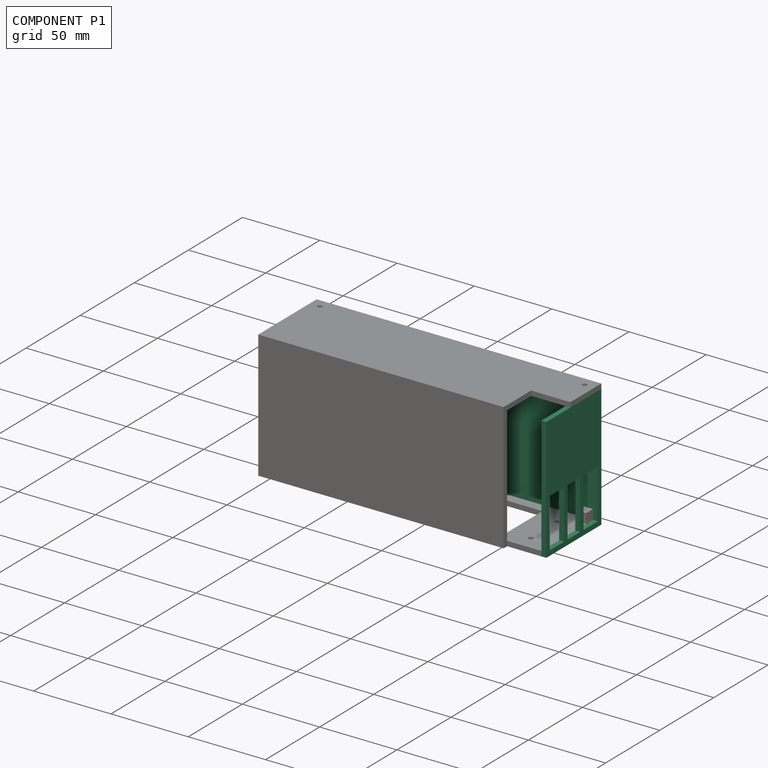
[diagram: component P1 — assembled]
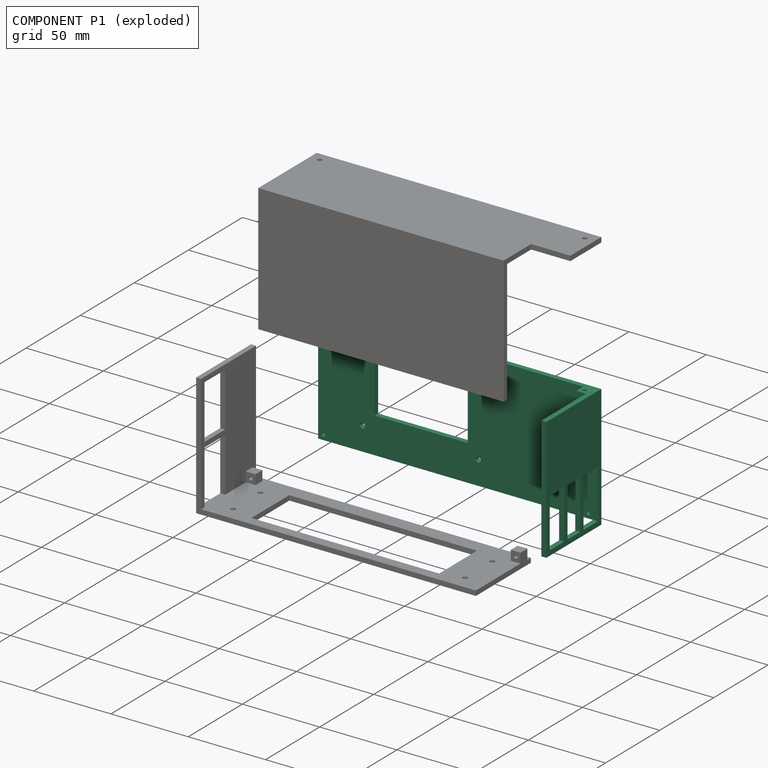
[diagram: component P1 — exploded]
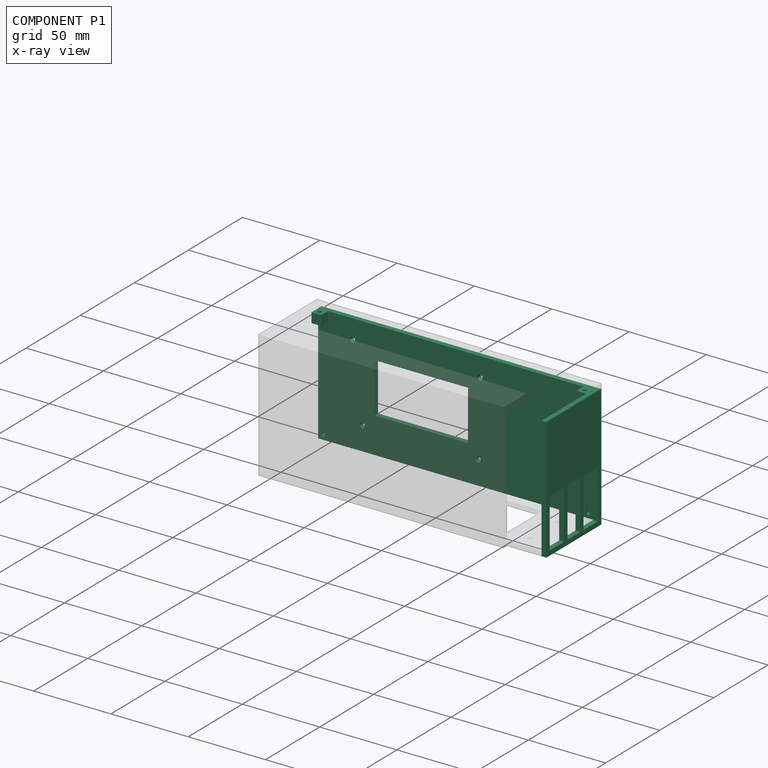
[diagram: component P1 — x-ray view]
COMPONENT P1 — recipe-attached (CADFS 00131216, mesh-verified: the recipe's output STEP matches this component's geometry to below the mesh-comparison resolution (tessellation chordal tolerance ~0.306 mm)).
Held by: PLANAR mate "Planar 1" to P2; CYLINDRICAL mate "Cylindrical 3" to P0; FASTENED mate "Fastened 1" to P0; CYLINDRICAL mate "Cylindrical 2" to P2; CYLINDRICAL mate "Cylindrical 1" to P2.
Construction recipe (FeatureScript — the CAD program that rebuilds this solid; sketch coordinates are in the units given by the * unit suffixes, e.g. mm):

FeatureScript 1511;
import(path : "onshape/std/geometry.fs", version : "1511.0");
import(path : "onshape/std/common.fs", version : "1511.0");
const mm = millimeter;
const VERTEX = EntityType.VERTEX;
const EDGE = EntityType.EDGE;
const FACE = EntityType.FACE;
const BODY = EntityType.BODY;
function v(x, y){return vector(x, y);}
function OD(order){return orderDisambiguation(order);}
function OSD(set){return originalSetDisambiguation(set);}
function TD(topology){return topologyDisambiguation(topology);}
function TDD(query){return trueDependencyDisambiguation(query);}
function sQuery(a, b, c) {return sketchEntityQuery(a, b, c);}

annotation { "Feature Type Name" : "Feature", "Feature Type Description" : "" }
export const myFeature = defineFeature(function(context is Context, id is Id, definition is map)
    precondition{}
    {
        {
            var Q0;
            Q0=qCreatedBy(makeId("Top.planeOp"),FACE);
            var sketch = newSketch(context, id + "F0", { "sketchPlane" : qUnion([Q0])});
            skLineSegment(sketch, "E0.bottom", {"start": v(-95.97, 25.4) * mm, "end": v(88.18, 25.4) * mm});
            skLineSegment(sketch, "E0.top", {"start": v(-95.97, -25.4) * mm, "end": v(88.18, -25.4) * mm});
            skLineSegment(sketch, "E0.left", {"start": v(-95.97, 25.4) * mm, "end": v(-95.97, -25.4) * mm});
            skLineSegment(sketch, "E0.right", {"start": v(88.18, 25.4) * mm, "end": v(88.18, -25.4) * mm});
            skPoint(sketch, "E0.middle", {"position": v(-3.9, 0) * mm});
            skSolve(sketch);
        }
        {
            var Q0;
            Q0=makeQuery(id+"F0.imprint","IMPRINT",FACE,{"disambiguationData":[TD([[makeQuery(id+"F0.imprint","IMPRINT",EDGE,{"derivedFrom":sQuery(id+"F0.wireOp",EDGE,"E0.bottom")}),-1.0]])]});
            extrude(context, id + "F1", {"entities" : qUnion([Q0]), "depth" : 3.17 * mm});
        }
        {
            var Q0;
            Q0=makeQuery(id+"F1.opExtrude","CAP_FACE",FACE,{"disambiguationData":[OSD([sQuery(id+"F0.wireOp",EDGE,"E0.bottom"),sQuery(id+"F0.wireOp",EDGE,"E0.top"),sQuery(id+"F0.wireOp",EDGE,"E0.left"),sQuery(id+"F0.wireOp",EDGE,"E0.right")])],"isStart":false});
            var sketch = newSketch(context, id + "F2", { "sketchPlane" : qUnion([Q0])});
            skPoint(sketch, "E1", {"position": v(-78.9, 9.53) * mm});
            skPoint(sketch, "E2", {"position": v(71.1, 9.53) * mm});
            skPoint(sketch, "E3", {"position": v(71.1, -15.47) * mm});
            skPoint(sketch, "E4", {"position": v(-78.9, -15.47) * mm});
            skLineSegment(sketch, "E5", {"start": v(-78.9, 9.53) * mm, "end": v(-95.97, 9.53) * mm, "construction": true});
            skLineSegment(sketch, "E6", {"start": v(71.1, 9.53) * mm, "end": v(88.18, 9.53) * mm, "construction": true});
            skPoint(sketch, "E6.endSnap0", {"position": v(88.18, 0) * mm});
            skSolve(sketch);
        }
        {
            var Q0;
            Q0=sQuery(id+"F2.wireOp",VERTEX,"E1");
            var Q1;
            Q1=sQuery(id+"F2.wireOp",VERTEX,"E4");
            var Q2;
            Q2=sQuery(id+"F2.wireOp",VERTEX,"E3");
            var Q3;
            Q3=sQuery(id+"F2.wireOp",VERTEX,"E2");
            var Q4;
            Q4=makeQuery(id+"F1.opExtrude","SWEPT_BODY",BODY,{"disambiguationData":[OSD([sQuery(id+"F0.wireOp",EDGE,"E0.bottom"),sQuery(id+"F0.wireOp",EDGE,"E0.top"),sQuery(id+"F0.wireOp",EDGE,"E0.left"),sQuery(id+"F0.wireOp",EDGE,"E0.right")])]});
            hole(context, id + "F3", {"style" : HoleStyle.SIMPLE, "endStyle" : HoleEndStyle.THROUGH, "standardTappedOrClearance" : lookupTablePath({ "standard" : "ISO", "engagement" : "75%", "pitch" : "0.75 mm", "size" : "M4", "type" : "Tapped" }), "standardBlindInLast" : lookupTablePath({ "standard" : "ISO", "engagement" : "75%", "pitch" : "0.75 mm", "size" : "M4", "type" : "Tapped" }), "holeDiameter" : 3.2 * mm, "locations" : qUnion([Q0, Q1, Q2, Q3]), "scope" : qUnion([Q4]), "isTappedThrough" : true, "showTappedDepth" : true});
        }
        {
            var Q0;
            Q0=makeQuery(id+"F1.opExtrude","CAP_FACE",FACE,{"disambiguationData":[OSD([sQuery(id+"F0.wireOp",EDGE,"E0.bottom"),sQuery(id+"F0.wireOp",EDGE,"E0.top"),sQuery(id+"F0.wireOp",EDGE,"E0.left"),sQuery(id+"F0.wireOp",EDGE,"E0.right")])],"isStart":false});
            var sketch = newSketch(context, id + "F4", { "sketchPlane" : qUnion([Q0])});
            skLineSegment(sketch, "E7.bottom", {"start": v(-95.97, 25.4) * mm, "end": v(88.18, 25.4) * mm});
            skLineSegment(sketch, "E7.top", {"start": v(-95.97, 22.23) * mm, "end": v(88.18, 22.23) * mm});
            skLineSegment(sketch, "E7.left", {"start": v(-95.97, 25.4) * mm, "end": v(-95.97, 22.23) * mm});
            skLineSegment(sketch, "E7.right", {"start": v(88.18, 25.4) * mm, "end": v(88.18, 22.23) * mm});
            skSolve(sketch);
        }
        {
            var Q0;
            Q0=makeQuery(id+"F4.imprint","IMPRINT",FACE,{"disambiguationData":[TD([[makeQuery(id+"F4.imprint","IMPRINT",EDGE,{"derivedFrom":sQuery(id+"F4.wireOp",EDGE,"E7.bottom")}),-1.0]])]});
            extrude(context, id + "F5", {"entities" : qUnion([Q0]), "operationType" : NewBodyOperationType.ADD, "depth" : 76.2 * mm});
        }
        {
            var Q0;
            Q0=makeQuery(id+"F5.opExtrude","SWEPT_FACE",FACE,{"disambiguationData":[OSD([sQuery(id+"F4.wireOp",EDGE,"E7.top")])]});
            var sketch = newSketch(context, id + "F6", { "sketchPlane" : qUnion([Q0])});
            skPoint(sketch, "E8", {"position": v(-70.57, 66.67) * mm});
            skPoint(sketch, "E9", {"position": v(11.98, 66.67) * mm});
            skPoint(sketch, "E10", {"position": v(-64.22, 18.41) * mm});
            skPoint(sketch, "E11", {"position": v(10.7, 18.42) * mm});
            skSolve(sketch);
        }
        {
            var Q0;
            Q0=sQuery(id+"F6.wireOp",VERTEX,"E8");
            var Q1;
            Q1=sQuery(id+"F6.wireOp",VERTEX,"E9");
            var Q2;
            Q2=sQuery(id+"F6.wireOp",VERTEX,"E11");
            var Q3;
            Q3=sQuery(id+"F6.wireOp",VERTEX,"E10");
            var Q4;
            Q4=makeQuery(id+"F1.opExtrude","SWEPT_BODY",BODY,{"disambiguationData":[OSD([sQuery(id+"F0.wireOp",EDGE,"E0.bottom"),sQuery(id+"F0.wireOp",EDGE,"E0.top"),sQuery(id+"F0.wireOp",EDGE,"E0.left"),sQuery(id+"F0.wireOp",EDGE,"E0.right")])]});
            hole(context, id + "F7", {"style" : HoleStyle.SIMPLE, "endStyle" : HoleEndStyle.THROUGH, "standardTappedOrClearance" : lookupTablePath({ "standard" : "ISO", "fit" : "Normal", "size" : "M3", "type" : "Clearance" }), "standardBlindInLast" : lookupTablePath({ "fit" : "Standard", "standard" : "ISO", "size" : "M3", "type" : "Clearance" }), "holeDiameter" : 3.3 * mm, "locations" : qUnion([Q0, Q1, Q2, Q3]), "scope" : qUnion([Q4]), "isTappedThrough" : true});
        }
        {
            var Q0;
            Q0=makeQuery(id+"F1.opExtrude","CAP_FACE",FACE,{"disambiguationData":[OSD([sQuery(id+"F0.wireOp",EDGE,"E0.bottom"),sQuery(id+"F0.wireOp",EDGE,"E0.top"),sQuery(id+"F0.wireOp",EDGE,"E0.left"),sQuery(id+"F0.wireOp",EDGE,"E0.right")])],"isStart":false});
            var sketch = newSketch(context, id + "F8", { "sketchPlane" : qUnion([Q0])});
            skLineSegment(sketch, "E12.bottom", {"start": v(-95.97, 22.23) * mm, "end": v(-92.8, 22.23) * mm});
            skLineSegment(sketch, "E12.top", {"start": v(-95.97, -25.4) * mm, "end": v(-92.8, -25.4) * mm});
            skLineSegment(sketch, "E12.left", {"start": v(-95.97, 22.23) * mm, "end": v(-95.97, -25.4) * mm});
            skLineSegment(sketch, "E12.right", {"start": v(-92.8, 22.23) * mm, "end": v(-92.8, -25.4) * mm});
            skSolve(sketch);
        }
        {
            var Q0;
            Q0=makeQuery(id+"F8.imprint","IMPRINT",FACE,{"disambiguationData":[TD([[makeQuery(id+"F8.imprint","IMPRINT",EDGE,{"derivedFrom":sQuery(id+"F8.wireOp",EDGE,"E12.bottom")}),-1.0]])]});
            extrude(context, id + "F9", {"entities" : qUnion([Q0]), "operationType" : NewBodyOperationType.ADD, "depth" : 76.2 * mm});
        }
        {
            var Q0;
            Q0=makeQuery(id+"F9.boolean.opBoolean","MERGE",FACE,{"derivedFrom":[makeQuery(id+"F5.boolean.opBoolean","MERGE",FACE,{"derivedFrom":[makeQuery(id+"F1.opExtrude","SWEPT_FACE",FACE,{"disambiguationData":[OSD([sQuery(id+"F0.wireOp",EDGE,"E0.left")])]}),makeQuery(id+"F5.opExtrude","SWEPT_FACE",FACE,{"disambiguationData":[OSD([sQuery(id+"F4.wireOp",EDGE,"E7.left")])]})]}),makeQuery(id+"F9.opExtrude","SWEPT_FACE",FACE,{"disambiguationData":[OSD([sQuery(id+"F8.wireOp",EDGE,"E12.left")])]})]});
            var sketch = newSketch(context, id + "F10", { "sketchPlane" : qUnion([Q0])});
            skLineSegment(sketch, "E13.bottom", {"start": v(3.18, 76.2) * mm, "end": v(22.23, 76.2) * mm});
            skLineSegment(sketch, "E13.top", {"start": v(3.18, 3.18) * mm, "end": v(22.23, 3.18) * mm});
            skLineSegment(sketch, "E13.left", {"start": v(3.18, 76.2) * mm, "end": v(3.18, 3.17) * mm});
            skLineSegment(sketch, "E13.right", {"start": v(22.23, 76.2) * mm, "end": v(22.23, 3.17) * mm});
            skLineSegment(sketch, "E14", {"start": v(3.18, 39.69) * mm, "end": v(22.23, 39.69) * mm});
            skLineSegment(sketch, "E15", {"start": v(3.18, 41.27) * mm, "end": v(22.23, 41.27) * mm});
            skLineSegment(sketch, "E16", {"start": v(3.18, 38.1) * mm, "end": v(22.23, 38.1) * mm});
            skSolve(sketch);
        }
        {
            var Q0;
            {var subQ0=sQuery(id+"F10.wireOp",EDGE,"E13.bottom");Q0=makeQuery(id+"F10.imprint","IMPRINT",FACE,{"disambiguationData":[TD([[makeQuery(id+"F10.imprint","IMPRINT",EDGE,{"derivedFrom":subQ0}),-1.0]])]});}
            var Q1;
            {var subQ0=sQuery(id+"F10.wireOp",EDGE,"E13.top");Q1=makeQuery(id+"F10.imprint","IMPRINT",FACE,{"disambiguationData":[TD([[makeQuery(id+"F10.imprint","IMPRINT",EDGE,{"derivedFrom":subQ0}),1.0]])]});}
            extrude(context, id + "F11", {"entities" : qUnion([Q0, Q1]), "operationType" : NewBodyOperationType.REMOVE, "endBound" : BoundingType.UP_TO_NEXT, "oppositeDirection" : true, "depth" : 25.4 * mm});
        }
        {
            var Q0;
            Q0=makeQuery(id+"F11.boolean.opBoolean","MERGE",FACE,{"derivedFrom":[makeQuery(id+"F1.opExtrude","CAP_FACE",FACE,{"disambiguationData":[OSD([sQuery(id+"F0.wireOp",EDGE,"E0.bottom"),sQuery(id+"F0.wireOp",EDGE,"E0.top"),sQuery(id+"F0.wireOp",EDGE,"E0.left"),sQuery(id+"F0.wireOp",EDGE,"E0.right")])],"isStart":false}),makeQuery(id+"F11.opExtrude","SWEPT_FACE",FACE,{"disambiguationData":[OSD([sQuery(id+"F10.wireOp",EDGE,"E13.top")])]})]});
            var sketch = newSketch(context, id + "F12", { "sketchPlane" : qUnion([Q0])});
            skLineSegment(sketch, "E17.bottom", {"start": v(88.18, 22.23) * mm, "end": v(85, 22.23) * mm});
            skLineSegment(sketch, "E17.top", {"start": v(88.18, -25.4) * mm, "end": v(85, -25.4) * mm});
            skLineSegment(sketch, "E17.left", {"start": v(88.18, 22.23) * mm, "end": v(88.18, -25.4) * mm});
            skLineSegment(sketch, "E17.right", {"start": v(85, 22.23) * mm, "end": v(85, -25.4) * mm});
            skSolve(sketch);
        }
        {
            var Q0;
            Q0=makeQuery(id+"F12.imprint","IMPRINT",FACE,{"disambiguationData":[TD([[makeQuery(id+"F12.imprint","IMPRINT",EDGE,{"derivedFrom":sQuery(id+"F12.wireOp",EDGE,"E17.bottom")}),-1.0]])]});
            extrude(context, id + "F13", {"entities" : qUnion([Q0]), "operationType" : NewBodyOperationType.ADD, "depth" : 76.2 * mm});
        }
        {
            var Q0;
            Q0=makeQuery(id+"F13.boolean.opBoolean","MERGE",FACE,{"derivedFrom":[makeQuery(id+"F5.boolean.opBoolean","MERGE",FACE,{"derivedFrom":[makeQuery(id+"F1.opExtrude","SWEPT_FACE",FACE,{"disambiguationData":[OSD([sQuery(id+"F0.wireOp",EDGE,"E0.right")])]}),makeQuery(id+"F5.opExtrude","SWEPT_FACE",FACE,{"disambiguationData":[OSD([sQuery(id+"F4.wireOp",EDGE,"E7.right")])]})]}),makeQuery(id+"F13.opExtrude","SWEPT_FACE",FACE,{"disambiguationData":[OSD([sQuery(id+"F12.wireOp",EDGE,"E17.left")])]})]});
            var sketch = newSketch(context, id + "F14", { "sketchPlane" : qUnion([Q0])});
            skLineSegment(sketch, "E18.bottom", {"start": v(-22.22, 3.17) * mm, "end": v(22.23, 3.18) * mm});
            skLineSegment(sketch, "E18.top", {"start": v(-22.22, 34.92) * mm, "end": v(22.23, 34.93) * mm});
            skLineSegment(sketch, "E18.left", {"start": v(-22.22, 3.17) * mm, "end": v(-22.22, 34.92) * mm});
            skLineSegment(sketch, "E18.right", {"start": v(22.23, 3.17) * mm, "end": v(22.23, 34.92) * mm});
            skLineSegment(sketch, "E19", {"start": v(-7.4, 34.92) * mm, "end": v(-7.4, 3.18) * mm, "construction": true});
            skLineSegment(sketch, "E20", {"start": v(7.4, 34.92) * mm, "end": v(7.4, 3.18) * mm, "construction": true});
            skLineSegment(sketch, "E21", {"start": v(-22.22, 19.05) * mm, "end": v(-7.4, 19.05) * mm, "construction": true});
            skLineSegment(sketch, "E22", {"start": v(-7.4, 19.05) * mm, "end": v(7.4, 19.05) * mm, "construction": true});
            skLineSegment(sketch, "E23", {"start": v(7.4, 19.05) * mm, "end": v(22.23, 19.05) * mm, "construction": true});
            skLineSegment(sketch, "E24.bottom", {"start": v(-9, 34.92) * mm, "end": v(-5.82, 34.92) * mm});
            skLineSegment(sketch, "E24.top", {"start": v(-9, 3.17) * mm, "end": v(-5.82, 3.17) * mm});
            skLineSegment(sketch, "E24.left", {"start": v(-9, 34.92) * mm, "end": v(-9, 3.17) * mm});
            skLineSegment(sketch, "E24.right", {"start": v(-5.82, 34.92) * mm, "end": v(-5.82, 3.17) * mm});
            skPoint(sketch, "E24.middle", {"position": v(-7.4, 19.05) * mm});
            skLineSegment(sketch, "E25.bottom", {"start": v(5.82, 34.92) * mm, "end": v(9, 34.92) * mm});
            skLineSegment(sketch, "E25.top", {"start": v(5.82, 3.17) * mm, "end": v(9, 3.17) * mm});
            skLineSegment(sketch, "E25.left", {"start": v(5.82, 34.92) * mm, "end": v(5.82, 3.17) * mm});
            skLineSegment(sketch, "E25.right", {"start": v(9, 34.92) * mm, "end": v(9, 3.17) * mm});
            skPoint(sketch, "E25.middle", {"position": v(7.4, 19.05) * mm});
            skSolve(sketch);
        }
        {
            var Q0;
            {var subQ0=sQuery(id+"F14.wireOp",EDGE,"E18.left");Q0=makeQuery(id+"F14.imprint","IMPRINT",FACE,{"disambiguationData":[TD([[makeQuery(id+"F14.imprint","IMPRINT",EDGE,{"derivedFrom":subQ0}),-1.0]])]});}
            var Q1;
            {var subQ0=sQuery(id+"F14.wireOp",EDGE,"E24.right");Q1=makeQuery(id+"F14.imprint","IMPRINT",FACE,{"disambiguationData":[TD([[makeQuery(id+"F14.imprint","IMPRINT",EDGE,{"derivedFrom":subQ0}),1.0]])]});}
            var Q2;
            {var subQ0=sQuery(id+"F14.wireOp",EDGE,"E18.right");Q2=makeQuery(id+"F14.imprint","IMPRINT",FACE,{"disambiguationData":[TD([[makeQuery(id+"F14.imprint","IMPRINT",EDGE,{"derivedFrom":subQ0}),1.0]])]});}
            extrude(context, id + "F15", {"entities" : qUnion([Q0, Q1, Q2]), "operationType" : NewBodyOperationType.REMOVE, "endBound" : BoundingType.UP_TO_NEXT, "oppositeDirection" : true, "depth" : 25.4 * mm});
        }
        {
            var Q0;
            Q0=makeQuery(id+"F15.boolean.opBoolean","MERGE",FACE,{"derivedFrom":[makeQuery(id+"F5.opExtrude","SWEPT_FACE",FACE,{"disambiguationData":[OSD([sQuery(id+"F4.wireOp",EDGE,"E7.top")])]}),makeQuery(id+"F15.opExtrude","SWEPT_FACE",FACE,{"disambiguationData":[OSD([sQuery(id+"F14.wireOp",EDGE,"E18.right")])]})]});
            var sketch = newSketch(context, id + "F16", { "sketchPlane" : qUnion([Q0])});
            skLineSegment(sketch, "E26.bottom", {"start": v(-92.8, 79.38) * mm, "end": v(-86.45, 79.38) * mm});
            skLineSegment(sketch, "E26.top", {"start": v(-92.8, 73.03) * mm, "end": v(-86.45, 73.03) * mm});
            skLineSegment(sketch, "E26.left", {"start": v(-92.8, 79.38) * mm, "end": v(-92.8, 73.03) * mm});
            skLineSegment(sketch, "E26.right", {"start": v(-86.45, 79.38) * mm, "end": v(-86.45, 73.03) * mm});
            skLineSegment(sketch, "E27.bottom", {"start": v(85, 79.38) * mm, "end": v(78.65, 79.38) * mm});
            skLineSegment(sketch, "E27.top", {"start": v(85, 73.03) * mm, "end": v(78.65, 73.03) * mm});
            skLineSegment(sketch, "E27.left", {"start": v(85, 79.38) * mm, "end": v(85, 73.03) * mm});
            skLineSegment(sketch, "E27.right", {"start": v(78.65, 79.38) * mm, "end": v(78.65, 73.03) * mm});
            skSolve(sketch);
        }
        {
            var Q0;
            Q0=makeQuery(id+"F16.imprint","IMPRINT",FACE,{"disambiguationData":[TD([[makeQuery(id+"F16.imprint","IMPRINT",EDGE,{"derivedFrom":sQuery(id+"F16.wireOp",EDGE,"E26.bottom")}),-1.0]])]});
            var Q1;
            Q1=makeQuery(id+"F16.imprint","IMPRINT",FACE,{"disambiguationData":[TD([[makeQuery(id+"F16.imprint","IMPRINT",EDGE,{"derivedFrom":sQuery(id+"F16.wireOp",EDGE,"E26.bottom")}),-1.0]])]});
            var Q2;
            Q2=makeQuery(id+"F16.imprint","IMPRINT",FACE,{"disambiguationData":[TD([[makeQuery(id+"F16.imprint","IMPRINT",EDGE,{"derivedFrom":sQuery(id+"F16.wireOp",EDGE,"E27.bottom")}),-1.0]])]});
            extrude(context, id + "F17", {"entities" : qUnion([Q0, Q1, Q2]), "operationType" : NewBodyOperationType.ADD, "depth" : 6.35 * mm});
        }
        {
            var Q0;
            Q0=makeQuery(id+"F17.boolean.opBoolean","MERGE",FACE,{"derivedFrom":[makeQuery(id+"F13.boolean.opBoolean","MERGE",FACE,{"derivedFrom":[makeQuery(id+"F9.boolean.opBoolean","MERGE",FACE,{"derivedFrom":[makeQuery(id+"F5.opExtrude","CAP_FACE",FACE,{"disambiguationData":[OSD([sQuery(id+"F4.wireOp",EDGE,"E7.bottom"),sQuery(id+"F4.wireOp",EDGE,"E7.top"),sQuery(id+"F4.wireOp",EDGE,"E7.left"),sQuery(id+"F4.wireOp",EDGE,"E7.right")])],"isStart":false}),makeQuery(id+"F9.opExtrude","CAP_FACE",FACE,{"disambiguationData":[OSD([sQuery(id+"F8.wireOp",EDGE,"E12.bottom"),sQuery(id+"F8.wireOp",EDGE,"E12.top"),sQuery(id+"F8.wireOp",EDGE,"E12.left"),sQuery(id+"F8.wireOp",EDGE,"E12.right")])],"isStart":false})]}),makeQuery(id+"F13.opExtrude","CAP_FACE",FACE,{"disambiguationData":[OSD([sQuery(id+"F12.wireOp",EDGE,"E17.bottom"),sQuery(id+"F12.wireOp",EDGE,"E17.top"),sQuery(id+"F12.wireOp",EDGE,"E17.left"),sQuery(id+"F12.wireOp",EDGE,"E17.right")])],"isStart":false})]}),makeQuery(id+"F17.opExtrude","SWEPT_FACE",FACE,{"disambiguationData":[OSD([sQuery(id+"F16.wireOp",EDGE,"E26.bottom")])]}),makeQuery(id+"F17.opExtrude","SWEPT_FACE",FACE,{"disambiguationData":[OSD([sQuery(id+"F16.wireOp",EDGE,"E27.bottom")])]})]});
            var sketch = newSketch(context, id + "F18", { "sketchPlane" : qUnion([Q0])});
            skPoint(sketch, "E28", {"position": v(-89.62, 19.05) * mm});
            skPoint(sketch, "E29", {"position": v(81.83, 19.05) * mm});
            skSolve(sketch);
        }
        {
            var Q0;
            Q0=sQuery(id+"F18.wireOp",VERTEX,"E28");
            var Q1;
            Q1=sQuery(id+"F18.wireOp",VERTEX,"E29");
            var Q2;
            Q2=makeQuery(id+"F1.opExtrude","SWEPT_BODY",BODY,{"disambiguationData":[OSD([sQuery(id+"F0.wireOp",EDGE,"E0.bottom"),sQuery(id+"F0.wireOp",EDGE,"E0.top"),sQuery(id+"F0.wireOp",EDGE,"E0.left"),sQuery(id+"F0.wireOp",EDGE,"E0.right")])]});
            hole(context, id + "F19", {"style" : HoleStyle.SIMPLE, "endStyle" : HoleEndStyle.BLIND, "standardTappedOrClearance" : lookupTablePath({ "standard" : "ISO", "engagement" : "75%", "pitch" : "0.6 mm", "size" : "M3", "type" : "Tapped" }), "standardBlindInLast" : lookupTablePath({ "standard" : "ISO", "engagement" : "75%", "pitch" : "0.6 mm", "size" : "M3", "type" : "Tapped" }), "holeDiameter" : 2.4 * mm, "holeDepth" : 12.7 * mm, "locations" : qUnion([Q0, Q1]), "scope" : qUnion([Q2])});
        }
        {
            var Q0;
            {var subQ0=sQuery(id+"F14.wireOp",EDGE,"E18.bottom");var subQ2=sQuery(id+"F14.wireOp",EDGE,"E24.top");Q0=makeQuery(id+"F15.boolean.opBoolean","MERGE",FACE,{"derivedFrom":[makeQuery(id+"F11.boolean.opBoolean","MERGE",FACE,{"derivedFrom":[makeQuery(id+"F1.opExtrude","CAP_FACE",FACE,{"disambiguationData":[OSD([sQuery(id+"F0.wireOp",EDGE,"E0.bottom"),sQuery(id+"F0.wireOp",EDGE,"E0.top"),sQuery(id+"F0.wireOp",EDGE,"E0.left"),sQuery(id+"F0.wireOp",EDGE,"E0.right")])],"isStart":false}),makeQuery(id+"F11.opExtrude","SWEPT_FACE",FACE,{"disambiguationData":[OSD([sQuery(id+"F10.wireOp",EDGE,"E13.top")])]})]}),makeQuery(id+"F15.opExtrude","SWEPT_FACE",FACE,{"disambiguationData":[OSD([subQ0]),TDD([makeQuery(id+"F14.imprint","IMPRINT",EDGE,{"disambiguationData":[TD([[makeQuery(id+"F14.imprint","INTERSECT",VERTEX,{"derivedFrom":[subQ0,sQuery(id+"F14.wireOp",EDGE,"E18.left")]}),-1.0]])],"derivedFrom":subQ0})])]}),makeQuery(id+"F15.opExtrude","SWEPT_FACE",FACE,{"disambiguationData":[OSD([subQ0]),TDD([makeQuery(id+"F14.imprint","IMPRINT",EDGE,{"disambiguationData":[TD([[makeQuery(id+"F14.imprint","INTERSECT",VERTEX,{"derivedFrom":[subQ0,subQ2,sQuery(id+"F14.wireOp",EDGE,"E24.right")]}),-1.0]])],"derivedFrom":subQ0})])]}),makeQuery(id+"F15.opExtrude","SWEPT_FACE",FACE,{"disambiguationData":[OSD([subQ0]),TDD([makeQuery(id+"F14.imprint","IMPRINT",EDGE,{"disambiguationData":[TD([[makeQuery(id+"F14.imprint","INTERSECT",VERTEX,{"derivedFrom":[subQ0,sQuery(id+"F14.wireOp",EDGE,"E18.right")]}),1.0]])],"derivedFrom":subQ0})])]})]});}
            var sketch = newSketch(context, id + "F20", { "sketchPlane" : qUnion([Q0])});
            skLineSegment(sketch, "E30.bottom", {"start": v(-64.6, -19.05) * mm, "end": v(56.8, -19.05) * mm});
            skLineSegment(sketch, "E30.top", {"start": v(-64.6, 15.88) * mm, "end": v(56.8, 15.88) * mm});
            skLineSegment(sketch, "E30.left", {"start": v(-64.6, -19.05) * mm, "end": v(-64.6, 15.88) * mm});
            skLineSegment(sketch, "E30.right", {"start": v(56.8, -19.05) * mm, "end": v(56.8, 15.88) * mm});
            skSolve(sketch);
        }
        {
            var Q0;
            Q0=makeQuery(id+"F20.imprint","IMPRINT",FACE,{"disambiguationData":[TD([[makeQuery(id+"F20.imprint","IMPRINT",EDGE,{"derivedFrom":sQuery(id+"F20.wireOp",EDGE,"E30.bottom")}),1.0]])]});
            extrude(context, id + "F21", {"entities" : qUnion([Q0]), "operationType" : NewBodyOperationType.REMOVE, "oppositeDirection" : true, "depth" : 25.4 * mm});
        }
        {
            var Q0;
            Q0=makeQuery(id+"F15.boolean.opBoolean","MERGE",FACE,{"derivedFrom":[makeQuery(id+"F5.opExtrude","SWEPT_FACE",FACE,{"disambiguationData":[OSD([sQuery(id+"F4.wireOp",EDGE,"E7.top")])]}),makeQuery(id+"F15.opExtrude","SWEPT_FACE",FACE,{"disambiguationData":[OSD([sQuery(id+"F14.wireOp",EDGE,"E18.right")])]})]});
            var sketch = newSketch(context, id + "F22", { "sketchPlane" : qUnion([Q0])});
            skLineSegment(sketch, "E31.bottom", {"start": v(-56.22, 58.67) * mm, "end": v(3.98, 58.67) * mm});
            skLineSegment(sketch, "E31.top", {"start": v(-56.22, 26.42) * mm, "end": v(3.98, 26.42) * mm});
            skLineSegment(sketch, "E31.left", {"start": v(-56.22, 58.67) * mm, "end": v(-56.22, 26.42) * mm});
            skLineSegment(sketch, "E31.right", {"start": v(3.98, 58.67) * mm, "end": v(3.98, 26.42) * mm});
            skSolve(sketch);
        }
        {
            var Q0;
            Q0=makeQuery(id+"F22.imprint","IMPRINT",FACE,{"disambiguationData":[TD([[makeQuery(id+"F22.imprint","IMPRINT",EDGE,{"derivedFrom":sQuery(id+"F22.wireOp",EDGE,"E31.bottom")}),-1.0]])]});
            extrude(context, id + "F23", {"entities" : qUnion([Q0]), "operationType" : NewBodyOperationType.REMOVE, "oppositeDirection" : true, "depth" : 25.4 * mm});
        }
        {
            var Q0;
            Q0=makeQuery(id+"F13.boolean.opBoolean","MERGE",FACE,{"derivedFrom":[makeQuery(id+"F9.boolean.opBoolean","MERGE",FACE,{"derivedFrom":[makeQuery(id+"F1.opExtrude","SWEPT_FACE",FACE,{"disambiguationData":[OSD([sQuery(id+"F0.wireOp",EDGE,"E0.top")])]}),makeQuery(id+"F9.opExtrude","SWEPT_FACE",FACE,{"disambiguationData":[OSD([sQuery(id+"F8.wireOp",EDGE,"E12.top")])]})]}),makeQuery(id+"F13.opExtrude","SWEPT_FACE",FACE,{"disambiguationData":[OSD([sQuery(id+"F12.wireOp",EDGE,"E17.top")])]})]});
            var sketch = newSketch(context, id + "F24", { "sketchPlane" : qUnion([Q0])});
            skLineSegment(sketch, "E32", {"start": v(-95.97, 79.38) * mm, "end": v(-92.8, 79.38) * mm});
            skLineSegment(sketch, "E33", {"start": v(-92.8, 79.38) * mm, "end": v(-92.8, 3.17) * mm});
            skLineSegment(sketch, "E34", {"start": v(-92.8, 3.17) * mm, "end": v(85, 3.18) * mm});
            skLineSegment(sketch, "E35", {"start": v(85, 3.18) * mm, "end": v(85, 0) * mm});
            skLineSegment(sketch, "E36", {"start": v(85, 0) * mm, "end": v(-95.97, 0) * mm});
            skLineSegment(sketch, "E37", {"start": v(-95.97, 0) * mm, "end": v(-95.97, 79.38) * mm});
            skSolve(sketch);
        }
        {
            var Q0;
            Q0=makeQuery(id+"F24.imprint","IMPRINT",FACE,{"disambiguationData":[TD([[makeQuery(id+"F24.imprint","IMPRINT",EDGE,{"derivedFrom":sQuery(id+"F24.wireOp",EDGE,"E32")}),-1.0]])]});
            extrude(context, id + "F25", {"entities" : qUnion([Q0]), "operationType" : NewBodyOperationType.REMOVE, "endBound" : BoundingType.THROUGH_ALL, "oppositeDirection" : true, "depth" : 25.4 * mm});
        }
        {
            var Q0;
            Q0=makeQuery(id+"F15.boolean.opBoolean","MERGE",FACE,{"derivedFrom":[makeQuery(id+"F5.opExtrude","SWEPT_FACE",FACE,{"disambiguationData":[OSD([sQuery(id+"F4.wireOp",EDGE,"E7.top")])]}),makeQuery(id+"F15.opExtrude","SWEPT_FACE",FACE,{"disambiguationData":[OSD([sQuery(id+"F14.wireOp",EDGE,"E18.right")])]})]});
            var sketch = newSketch(context, id + "F26", { "sketchPlane" : qUnion([Q0])});
            skPoint(sketch, "E38", {"position": v(-89.62, 6.35) * mm});
            skPoint(sketch, "E39", {"position": v(81.83, 6.35) * mm});
            skSolve(sketch);
        }
        {
            var Q0;
            Q0=sQuery(id+"F26.wireOp",VERTEX,"E38");
            var Q1;
            Q1=sQuery(id+"F26.wireOp",VERTEX,"E39");
            var Q2;
            Q2=makeQuery(id+"F1.opExtrude","SWEPT_BODY",BODY,{"disambiguationData":[OSD([sQuery(id+"F0.wireOp",EDGE,"E0.bottom"),sQuery(id+"F0.wireOp",EDGE,"E0.top"),sQuery(id+"F0.wireOp",EDGE,"E0.left"),sQuery(id+"F0.wireOp",EDGE,"E0.right")])]});
            hole(context, id + "F27", {"style" : HoleStyle.SIMPLE, "endStyle" : HoleEndStyle.BLIND, "standardTappedOrClearance" : lookupTablePath({ "standard" : "ISO", "engagement" : "75%", "pitch" : "0.6 mm", "size" : "M3", "type" : "Tapped" }), "standardBlindInLast" : lookupTablePath({ "standard" : "ISO", "engagement" : "75%", "pitch" : "0.6 mm", "size" : "M3", "type" : "Tapped" }), "holeDiameter" : 2.4 * mm, "holeDepth" : 12.7 * mm, "locations" : qUnion([Q0, Q1]), "scope" : qUnion([Q2])});
        }
    });
PROVENANCE & LICENSES
Assembly (occurrences, transforms, mates, per-part STEP geometry): AutoMate dataset, Zenodo record 7776208, CC0.
Construction recipes: CADFS (HuggingFace VladPyatov/CADFS, CC-BY-4.0, layered over the ABC dataset), FeatureScript reconstruction programs keyed by ABC model id.
Join: ABC meta listings map ABC model id -> Onshape documentId; within a shared document, parts are matched by geometric signature (bounding-box dims + volume at 0.1% relative tolerance, exact B-rep face/solid counts).
Verification: 3 of this assembly's 3 components carry a recipe attachment, and every attachment is mesh-verified: the CADFS STEP and the AutoMate member STEP were compared as meshes in their shared local frame (symmetric sampled-point-to-mesh distance); worst across the 3 attachments: below the mesh-comparison resolution (tessellation chordal tolerance ~0.313 mm) on a 209 mm part.
Renders: orthographic iso camera (az 35 / el 25); the floor grid conveys scale (grid pitch printed in each image; no ruler). In the exploded view each component is displaced by its stored offset vector: the offsets alone carry the explosion direction (mate normal/axis signs are not orientation cues and do not encode it), and separation distances are assigned per mate-chain, not proportionally to assembly-order depth.
